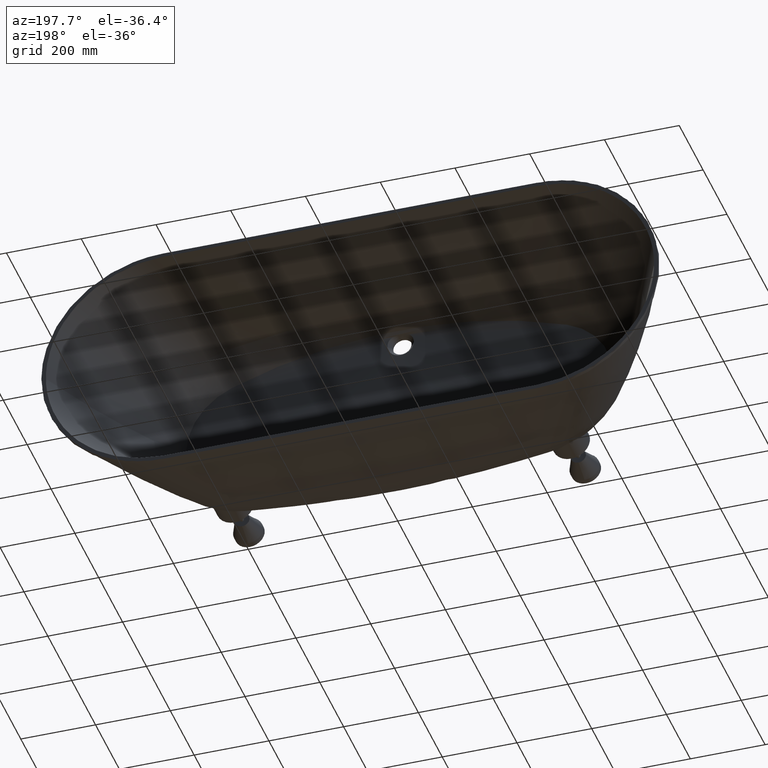
[diagram: clean part render]
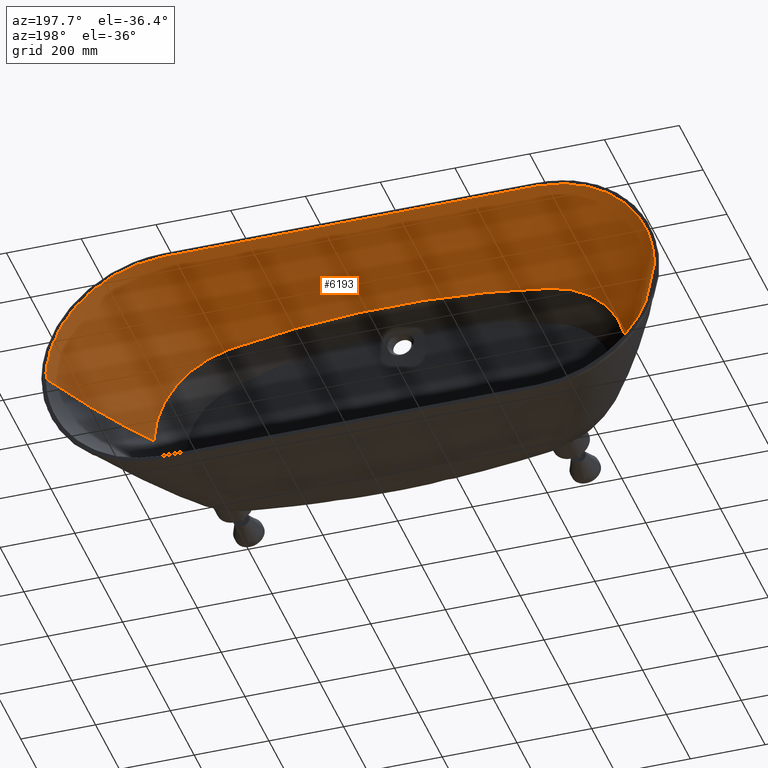
[diagram: same view with one face highlighted and labeled with its STEP entity id]
A machine part, auxiliary view. The second image highlights one B-rep face of the part: STEP entity #6193.
In plain terms, the highlighted face is a freeform B-spline surface patch.
Its self-contained STEP definition (entity closure, byte-faithful):
#2423 = DIRECTION ( 'NONE',  ( 0.0000000000000000000, 0.0000000000000000000, 1.000000000000000000 ) ) ;
#2513 = DIRECTION ( 'NONE',  ( 0.0000000000000000000, 1.000000000000000000, 0.0000000000000000000 ) ) ;
#2578 = CARTESIAN_POINT ( 'NONE',  ( 382.7499999999999400, -339.9999999999999400, 0.0000000000000000000 ) ) ;
#2883 = CARTESIAN_POINT ( 'NONE',  ( -499.9999999886463800, 0.0000000000000000000, 315.0000000000000000 ) ) ;
#2966 = CARTESIAN_POINT ( 'NONE',  ( 815.0000000000000000, 0.0000000000000000000, 1.127570259384924600E-014 ) ) ;
#3788 = CARTESIAN_POINT ( 'NONE',  ( 428.3154761904755800, -339.9999999999999400, 245.8125045223180800 ) ) ;
#4657 = EDGE_CURVE ( 'NONE', #6265, #19374, #61300, .T. ) ;
#5799 = CARTESIAN_POINT ( 'NONE',  ( -632.7485536667462600, -339.9999999999999400, 0.8504503916204713100 ) ) ;
#6193 = ADVANCED_FACE ( 'NONE', ( #42514 ), #30620, .F. ) ;
#6265 = VERTEX_POINT ( 'NONE', #7958 ) ;
#6462 = VERTEX_POINT ( 'NONE', #5799 ) ;
#6741 = CARTESIAN_POINT ( 'NONE',  ( -814.9978374447383700, 0.0000000000000000000, 1.167818525505383000 ) ) ;
#7958 = CARTESIAN_POINT ( 'NONE',  ( -428.3154761904760300, -339.9999999999999400, 245.8125045223181600 ) ) ;
#8043 = EDGE_CURVE ( 'NONE', #19374, #58101, #46197, .T. ) ;
#8044 = CARTESIAN_POINT ( 'NONE',  ( 630.6396377741135700, -343.2378964346709700, 1.180791005771231400E-008 ) ) ;
#8113 = CARTESIAN_POINT ( 'NONE',  ( 631.3430918494087800, -342.1585976231139600, 1.169327015423937900E-008 ) ) ;
#8132 = CARTESIAN_POINT ( 'NONE',  ( 632.0465459247038800, -341.0792988115569500, 1.157863025076644200E-008 ) ) ;
#8137 = AXIS2_PLACEMENT_3D ( 'NONE', #66514, #66338, #66350 ) ;
#8179 = CARTESIAN_POINT ( 'NONE',  ( 632.7499999999990900, -339.9999999999999400, 1.146399034729350700E-008 ) ) ;
#8192 = CARTESIAN_POINT ( 'NONE',  ( 703.0954075295183000, -232.0701188442985200, 0.0000000000000000000 ) ) ;
#8273 = CARTESIAN_POINT ( 'NONE',  ( 764.0619562190189500, -118.3327989297305900, 0.0000000000000000000 ) ) ;
#8357 = CARTESIAN_POINT ( 'NONE',  ( 814.9999999999998900, 0.0000000000000000000, 2.255140518769849200E-014 ) ) ;
#8406 = CARTESIAN_POINT ( 'NONE',  ( 815.8784694402762600, 2.040748719937352600, 2.294032315199775100E-014 ) ) ;
#8419 = CARTESIAN_POINT ( 'NONE',  ( 816.7569388805527500, 4.081497439874705300, 2.332924111629700900E-014 ) ) ;
#8496 = CARTESIAN_POINT ( 'NONE',  ( 817.6354083208292400, 6.122246159812057400, 2.371815908059626700E-014 ) ) ;
#8581 = CARTESIAN_POINT ( 'NONE',  ( 630.6396377741135700, -343.2378964346709700, -15.20747942933785900 ) ) ;
#8631 = CARTESIAN_POINT ( 'NONE',  ( 631.3430918494087800, -342.1585976231139600, -15.22652929045361800 ) ) ;
#8644 = CARTESIAN_POINT ( 'NONE',  ( 632.0465459247038800, -341.0792988115569500, -15.24557915156937900 ) ) ;
#8723 = CARTESIAN_POINT ( 'NONE',  ( 632.7499999999990900, -339.9999999999999400, -15.26462901268513900 ) ) ;
#8757 = EDGE_CURVE ( 'NONE', #15288, #19580, #60178, .T. ) ;
#8807 = CARTESIAN_POINT ( 'NONE',  ( 703.0954075295183000, -232.0701188442985200, -17.16961512426118100 ) ) ;
#8859 = CARTESIAN_POINT ( 'NONE',  ( 764.0619562190189500, -118.3327989297305900, -19.07460122437323900 ) ) ;
#8871 = CARTESIAN_POINT ( 'NONE',  ( 815.0000000000000000, 0.0000000000000000000, -20.97958732448527300 ) ) ;
#8951 = CARTESIAN_POINT ( 'NONE',  ( 815.8784694402763800, 2.040748719937352600, -21.01244041323551000 ) ) ;
#9030 = CARTESIAN_POINT ( 'NONE',  ( 816.7569388805528700, 4.081497439874705300, -21.04529350198574300 ) ) ;
#9085 = CARTESIAN_POINT ( 'NONE',  ( 817.6354083208293600, 6.122246159812057400, -21.07814659073598000 ) ) ;
#9096 = CARTESIAN_POINT ( 'NONE',  ( 627.8524423991261800, -343.2387512402786500, -45.69771026261504000 ) ) ;
#9176 = CARTESIAN_POINT ( 'NONE',  ( 628.5505092838254800, -342.1591674935188500, -45.75498711406243800 ) ) ;
#9255 = CARTESIAN_POINT ( 'NONE',  ( 629.2485761685247800, -341.0795837467591100, -45.81226396550983500 ) ) ;
#9302 = CARTESIAN_POINT ( 'NONE',  ( 629.9466430532240800, -339.9999999999993700, -45.86954081695724000 ) ) ;
#9314 = CARTESIAN_POINT ( 'NONE',  ( 699.7533315231526100, -232.0416253240214800, -51.59722596169717000 ) ) ;
#9393 = CARTESIAN_POINT ( 'NONE',  ( 760.2512966498181900, -118.3044425818916500, -57.25437983429394300 ) ) ;
#9474 = CARTESIAN_POINT ( 'NONE',  ( 810.7957504450571400, 0.0000000000000000000, -62.83972943412166500 ) ) ;
#9526 = CARTESIAN_POINT ( 'NONE',  ( 811.6674320947391800, 2.040259690850930100, -62.93605348923862400 ) ) ;
#9540 = CARTESIAN_POINT ( 'NONE',  ( 812.5391137444213400, 4.080519381701860100, -63.03237754435559000 ) ) ;
#9616 = CARTESIAN_POINT ( 'NONE',  ( 813.4107953941033900, 6.120779072552791100, -63.12870159947254900 ) ) ;
#9701 = CARTESIAN_POINT ( 'NONE',  ( 615.3216480266680700, -343.2422842499915400, -90.11158818543536600 ) ) ;
#9753 = CARTESIAN_POINT ( 'NONE',  ( 615.9970575292834400, -342.1615228333278700, -90.22331196607530000 ) ) ;
#9764 = CARTESIAN_POINT ( 'NONE',  ( 616.6724670318988000, -341.0807614166641300, -90.33503574671523500 ) ) ;
#9918 = CARTESIAN_POINT ( 'NONE',  ( 617.3478765345141700, -340.0000000000004500, -90.44675952735516900 ) ) ;
#9970 = CARTESIAN_POINT ( 'NONE',  ( 684.8888267960483100, -231.9238583336311900, -101.6191375913490900 ) ) ;
#9981 = CARTESIAN_POINT ( 'NONE',  ( 743.4109317740421800, -118.1872425409343600, -112.4294705857455500 ) ) ;
#10056 = CARTESIAN_POINT ( 'NONE',  ( 792.2894824840840300, 0.0000000000000000000, -122.8712240048082700 ) ) ;
#10140 = AXIS2_PLACEMENT_3D ( 'NONE', #57947, #57809, #57729 ) ;
#10141 = CARTESIAN_POINT ( 'NONE',  ( 793.1324342328475700, 2.038238477495686300, -123.0513008314918600 ) ) ;
#10194 = CARTESIAN_POINT ( 'NONE',  ( 793.9753859816112300, 4.076476954991372600, -123.2313776581754600 ) ) ;
#10203 = CARTESIAN_POINT ( 'NONE',  ( 794.8183377303747600, 6.114715432487058100, -123.4114544848590600 ) ) ;
#10276 = CARTESIAN_POINT ( 'NONE',  ( 594.7490592185829400, -343.2477544454772000, -131.6613781192098700 ) ) ;
#10364 = CARTESIAN_POINT ( 'NONE',  ( 595.3894079361243700, -342.1651696303183600, -131.8218954427376600 ) ) ;
#10419 = CARTESIAN_POINT ( 'NONE',  ( 596.0297566536659100, -341.0825848151595200, -131.9824127662654400 ) ) ;
#10430 = CARTESIAN_POINT ( 'NONE',  ( 596.6701053712073400, -340.0000000000006800, -132.1429300897932300 ) ) ;
#10501 = CARTESIAN_POINT ( 'NONE',  ( 660.7049771253609800, -231.7415184841179600, -148.1946624425712600 ) ) ;
#10591 = CARTESIAN_POINT ( 'NONE',  ( 716.1698247946101200, -118.0057805050937700, -163.4329958974642200 ) ) ;
#10644 = CARTESIAN_POINT ( 'NONE',  ( 762.4710279237682500, 0.0000000000000000000, -177.8432495059432800 ) ) ;
#10656 = CARTESIAN_POINT ( 'NONE',  ( 763.2695311441094600, 2.035109011948447400, -178.0917664587362000 ) ) ;
#10731 = CARTESIAN_POINT ( 'NONE',  ( 764.0680343644506800, 4.070218023896894800, -178.3402834115291300 ) ) ;
#10817 = CARTESIAN_POINT ( 'NONE',  ( 764.8665375847919000, 6.105327035845340900, -178.5888003643220500 ) ) ;
#10873 = CARTESIAN_POINT ( 'NONE',  ( 566.7298747278495100, -343.2548482112079600, -168.8681225520631100 ) ) ;
#10885 = CARTESIAN_POINT ( 'NONE',  ( 567.3253369164415300, -342.1698988074712700, -169.0696181952787600 ) ) ;
#10964 = CARTESIAN_POINT ( 'NONE',  ( 567.9207991050334400, -341.0849494037346400, -169.2711138384944100 ) ) ;
#11050 = CARTESIAN_POINT ( 'NONE',  ( 568.5162612936254600, -339.9999999999979500, -169.4726094817100700 ) ) ;
#11103 = CARTESIAN_POINT ( 'NONE',  ( 628.0624801528175600, -231.5050596263339700, -189.6221738032741900 ) ) ;
#11115 = CARTESIAN_POINT ( 'NONE',  ( 679.6207075889775500, -117.7704599986856100, -208.3730222434341500 ) ) ;
#11194 = CARTESIAN_POINT ( 'NONE',  ( 722.6376388438470700, 0.0000000000000000000, -225.6999095224805700 ) ) ;
#11282 = CARTESIAN_POINT ( 'NONE',  ( 723.3795020312979900, 2.031050711742833100, -225.9987262778943200 ) ) ;
#11338 = CARTESIAN_POINT ( 'NONE',  ( 724.1213652187489100, 4.062101423485666300, -226.2975430333081000 ) ) ;
#11339 = CARTESIAN_POINT ( 'NONE',  ( 632.7499999999990900, -339.9999999999999400, 1.146400779507114000E-008 ) ) ;
#11352 = CARTESIAN_POINT ( 'NONE',  ( 724.8632284061998200, 6.093152135228499400, -226.5963597887218600 ) ) ;
#11430 = CARTESIAN_POINT ( 'NONE',  ( 532.1392420713547200, -343.2632519316674700, -200.3715644900239300 ) ) ;
#11515 = CARTESIAN_POINT ( 'NONE',  ( 532.6828233481712700, -342.1755012877788400, -200.6047124063716800 ) ) ;
#11544 = ORIENTED_EDGE ( 'NONE', *, *, #46047, .F. ) ;
#11588 = CARTESIAN_POINT ( 'NONE',  ( 533.2264046249878200, -341.0877506438902200, -200.8378603227194200 ) ) ;
#11665 = CARTESIAN_POINT ( 'NONE',  ( 533.7699859018043800, -340.0000000000016500, -201.0710082390671400 ) ) ;
#11753 = CARTESIAN_POINT ( 'NONE',  ( 588.1281135834599400, -231.2249356111392200, -224.3857998738420500 ) ) ;
#11819 = CARTESIAN_POINT ( 'NONE',  ( 635.1877622915172900, -117.4916845460295700, -245.6084723640644000 ) ) ;
#11885 = CARTESIAN_POINT ( 'NONE',  ( 674.4433877745763100, 0.0000000000000000000, -264.7012652597497300 ) ) ;
#11895 = CARTESIAN_POINT ( 'NONE',  ( 675.1203840780481200, 2.026242994412530000, -265.0305365439102200 ) ) ;
#11987 = CARTESIAN_POINT ( 'NONE',  ( 675.7973803815198200, 4.052485988825059900, -265.3598078280707000 ) ) ;
#12022 = CARTESIAN_POINT ( 'NONE',  ( 815.0000000000000000, 0.0000000000000000000, 1.127570259384924600E-014 ) ) ;
#12055 = CARTESIAN_POINT ( 'NONE',  ( 676.4743766849915100, 6.078728983237589900, -265.6890791122312400 ) ) ;
#12126 = CARTESIAN_POINT ( 'NONE',  ( 492.1068910974331100, -343.2726519913174500, -224.9832046386746600 ) ) ;
#12215 = CARTESIAN_POINT ( 'NONE',  ( 492.5945127224962300, -342.1817679942112100, -225.2378229741719600 ) ) ;
#12283 = CARTESIAN_POINT ( 'NONE',  ( 493.0821343475593000, -341.0908839971050400, -225.4924413096692900 ) ) ;
#12358 = CARTESIAN_POINT ( 'NONE',  ( 493.5697559726224300, -339.9999999999988100, -225.7470596451665900 ) ) ;
#12452 = CARTESIAN_POINT ( 'NONE',  ( 542.3319184789353400, -230.9116002893787000, -251.2088931948972600 ) ) ;
#12521 = CARTESIAN_POINT ( 'NONE',  ( 584.5668625729688300, -117.1798576714378700, -273.8029949328997600 ) ) ;
#12541 = CARTESIAN_POINT ( 'NONE',  ( 619.8224669623413100, 0.0000000000000000000, -293.4776054491138700 ) ) ;
#12595 = CARTESIAN_POINT ( 'NONE',  ( 620.4304795351780500, 2.020865277491096000, -293.8169106678645300 ) ) ;
#12682 = CARTESIAN_POINT ( 'NONE',  ( 621.0384921080147900, 4.041730554982192000, -294.1562158866151400 ) ) ;
#12745 = CARTESIAN_POINT ( 'NONE',  ( 621.6465046808514200, 6.062595832473286700, -294.4955211053658100 ) ) ;
#12764 = CARTESIAN_POINT ( 'NONE',  ( 447.9848239064814900, -343.2827347746430200, -241.7384477549949500 ) ) ;
#12820 = CARTESIAN_POINT ( 'NONE',  ( 448.4152531699432400, -342.1884898497621100, -242.0041266737129600 ) ) ;
#12908 = CARTESIAN_POINT ( 'NONE',  ( 448.8456824334049900, -341.0942449248812500, -242.2698055924309700 ) ) ;
#12973 = CARTESIAN_POINT ( 'NONE',  ( 449.2761116968667900, -340.0000000000004000, -242.5354845111489800 ) ) ;
#12991 = CARTESIAN_POINT ( 'NONE',  ( 492.3190380430434100, -230.5755075119134900, -269.1033763829491400 ) ) ;
#13053 = CARTESIAN_POINT ( 'NONE',  ( 529.6620229744679600, -116.8453828992306700, -291.9715912474202400 ) ) ;
#13144 = CARTESIAN_POINT ( 'NONE',  ( 560.9102482521661800, 0.0000000000000000000, -311.0733539939196200 ) ) ;
#13209 = CARTESIAN_POINT ( 'NONE',  ( 561.4491501991542500, 2.015096978512225700, -311.4027799707074600 ) ) ;
#13227 = CARTESIAN_POINT ( 'NONE',  ( 561.9880521461421900, 4.030193957024451400, -311.7322059474953400 ) ) ;
#13285 = CARTESIAN_POINT ( 'NONE',  ( 562.5269540931302600, 6.045290935536678000, -312.0616319242832300 ) ) ;
#13371 = CARTESIAN_POINT ( 'NONE',  ( 416.8635670283750900, -343.2897027022889300, -247.2019097017374900 ) ) ;
#13413 = AXIS2_PLACEMENT_3D ( 'NONE', #46884, #15384, #52191 ) ;
#13436 = CARTESIAN_POINT ( 'NONE',  ( 417.2568108912569200, -342.1931351348592900, -247.4682432827791000 ) ) ;
#13457 = CARTESIAN_POINT ( 'NONE',  ( 417.6500547541388100, -341.0965675674296400, -247.7345768638207300 ) ) ;
#13505 = CARTESIAN_POINT ( 'NONE',  ( 418.0432986170206400, -339.9999999999999400, -248.0009104448623400 ) ) ;
#13517 = CARTESIAN_POINT ( 'NONE',  ( 457.3676849052068900, -230.3432432570329800, -274.6342685490220700 ) ) ;
#13593 = CARTESIAN_POINT ( 'NONE',  ( 491.5638376173482100, -116.6142368022250900, -296.9930157469034400 ) ) ;
#13610 = CARTESIAN_POINT ( 'NONE',  ( -382.7499999999999400, -339.9999999999999400, 0.0000000000000000000 ) ) ;
#13679 = CARTESIAN_POINT ( 'NONE',  ( 520.2765390411527700, 0.0000000000000000000, -314.9999999999999400 ) ) ;
#13731 = CARTESIAN_POINT ( 'NONE',  ( 520.7717137450940800, 2.011110669510418200, -315.3105456001784400 ) ) ;
#13743 = CARTESIAN_POINT ( 'NONE',  ( 521.2668884490354900, 4.022221339020836300, -315.6210912003570000 ) ) ;
#13822 = CARTESIAN_POINT ( 'NONE',  ( 521.7620631529767900, 6.033332008531254500, -315.9316368005355000 ) ) ;
#13903 = CARTESIAN_POINT ( 'NONE',  ( 368.3395658688336900, -343.3004913928787700, -251.0281738213399500 ) ) ;
#13955 = CARTESIAN_POINT ( 'NONE',  ( 368.6773099577103500, -342.2003275952524700, -251.2907462629638400 ) ) ;
#13968 = CARTESIAN_POINT ( 'NONE',  ( 369.0150540465870100, -341.1001637976261800, -251.5533187045877000 ) ) ;
#14049 = CARTESIAN_POINT ( 'NONE',  ( 369.3527981354636700, -339.9999999999998900, -251.8158911462115600 ) ) ;
#14129 = CARTESIAN_POINT ( 'NONE',  ( 403.1272070231266900, -229.9836202373711000, -278.0731353085955700 ) ) ;
#14179 = CARTESIAN_POINT ( 'NONE',  ( 432.6585779470707400, -116.2563450662323000, -299.1655779283817700 ) ) ;
#14192 = CARTESIAN_POINT ( 'NONE',  ( 457.6530081011364400, 0.0000000000000000000, -314.9999999999999400 ) ) ;
#14269 = CARTESIAN_POINT ( 'NONE',  ( 458.0840580873094700, 2.004938525280675100, -315.2730779366825100 ) ) ;
#14351 = CARTESIAN_POINT ( 'NONE',  ( 458.5151080734824500, 4.009877050561350100, -315.5461558733650800 ) ) ;
#14403 = CARTESIAN_POINT ( 'NONE',  ( 458.9461580596554300, 6.014815575842026100, -315.8192338100476500 ) ) ;
#14414 = CARTESIAN_POINT ( 'NONE',  ( 302.1370308077233100, -343.3151630299041100, -255.6027186251753000 ) ) ;
#14416 = CARTESIAN_POINT ( 'NONE',  ( -500.0000000000000000, 0.0000000000000000000, 314.9999999999999400 ) ) ;
#14497 = CARTESIAN_POINT ( 'NONE',  ( 302.4038617611722700, -342.2101086866027200, -255.8622515931434100 ) ) ;
#14581 = CARTESIAN_POINT ( 'NONE',  ( 302.6706927146212800, -341.1050543433013300, -256.1217845611115000 ) ) ;
#14632 = CARTESIAN_POINT ( 'NONE',  ( 302.9375236680702400, -339.9999999999999400, -256.3813175290796400 ) ) ;
#14645 = CARTESIAN_POINT ( 'NONE',  ( 329.6206190129660200, -229.4945656698601800, -282.3346143258879100 ) ) ;
#14721 = CARTESIAN_POINT ( 'NONE',  ( 353.2644618407912800, -115.7696448868992900, -301.9125313555539900 ) ) ;
#14797 = CARTESIAN_POINT ( 'NONE',  ( 373.6585320357625600, 0.0000000000000000000, -314.9999999999997200 ) ) ;
#14849 = CARTESIAN_POINT ( 'NONE',  ( 374.0102449422527700, 1.996544971025638200, -315.2257044126810700 ) ) ;
#14860 = CARTESIAN_POINT ( 'NONE',  ( 374.3619578487429700, 3.993089942051276400, -315.4514088253623600 ) ) ;
#14942 = CARTESIAN_POINT ( 'NONE',  ( 374.7136707552331800, 5.989634913076915100, -315.6771132380437200 ) ) ;
#15023 = CARTESIAN_POINT ( 'NONE',  ( 201.6757612104658500, -343.3345557027414000, -260.5553758251272100 ) ) ;
#15075 = CARTESIAN_POINT ( 'NONE',  ( 201.8463471399618100, -342.2230371351608900, -260.8145014549888300 ) ) ;
#15085 = CARTESIAN_POINT ( 'NONE',  ( 202.0169330694577600, -341.1115185675803900, -261.0736270848505000 ) ) ;
#15163 = CARTESIAN_POINT ( 'NONE',  ( 202.1875189989537200, -339.9999999999998900, -261.3327527147121100 ) ) ;
#15250 = CARTESIAN_POINT ( 'NONE',  ( 219.2461119485500100, -228.8481432419503100, -287.2453157008732800 ) ) ;
#15288 = VERTEX_POINT ( 'NONE', #58071 ) ;
#15304 = CARTESIAN_POINT ( 'NONE',  ( 234.8565916174706300, -115.1263344416256600, -305.1823811271733600 ) ) ;
#15315 = CARTESIAN_POINT ( 'NONE',  ( 248.9186514422417000, 0.0000000000000000000, -315.0000000000004000 ) ) ;
#15384 = DIRECTION ( 'NONE',  ( 0.0000000000000000000, 1.000000000000000000, 0.0000000000000000000 ) ) ;
#15391 = CARTESIAN_POINT ( 'NONE',  ( 249.1611635001549700, 1.985450540913374000, -315.1693131010912300 ) ) ;
#15481 = CARTESIAN_POINT ( 'NONE',  ( 249.4036755580682200, 3.970901081826748100, -315.3386262021821300 ) ) ;
#15534 = CARTESIAN_POINT ( 'NONE',  ( 249.6461876159814900, 5.956351622740122300, -315.5079393032729600 ) ) ;
#15544 = CARTESIAN_POINT ( 'NONE',  ( 100.6964241789768000, -343.3484767670811900, -263.5321986084285900 ) ) ;
#15620 = CARTESIAN_POINT ( 'NONE',  ( 100.7786325924251700, -342.2323178447207400, -263.7929409088160400 ) ) ;
#15706 = CARTESIAN_POINT ( 'NONE',  ( 100.8608410058735400, -341.1161589223602800, -264.0536832092035400 ) ) ;
#15765 = CARTESIAN_POINT ( 'NONE',  ( 100.9430494193219200, -339.9999999999998900, -264.3144255095909900 ) ) ;
#15776 = CARTESIAN_POINT ( 'NONE',  ( 109.1638907641596500, -228.3841077639568200, -290.3886555483382500 ) ) ;
#15851 = CARTESIAN_POINT ( 'NONE',  ( 117.0788209305942600, -114.6645329058466300, -307.3387406524866500 ) ) ;
#15939 = CARTESIAN_POINT ( 'NONE',  ( 124.6666503477239400, 0.0000000000000000000, -314.9999999999994900 ) ) ;
#15994 = CARTESIAN_POINT ( 'NONE',  ( 124.7975088528059200, 1.977486384723966300, -315.1321248660379400 ) ) ;
#16005 = CARTESIAN_POINT ( 'NONE',  ( 124.9283673578878900, 3.954972769447932600, -315.2642497320763400 ) ) ;
#16075 = CARTESIAN_POINT ( 'NONE',  ( 125.0592258629698800, 5.932459154171898100, -315.3963745981147300 ) ) ;
#16165 = CARTESIAN_POINT ( 'NONE',  ( 33.47626300487673500, -343.3522051871116800, -264.1866634332819200 ) ) ;
#16218 = CARTESIAN_POINT ( 'NONE',  ( 33.50329404006415500, -342.2348034580744500, -264.4483100236336700 ) ) ;
#16231 = CARTESIAN_POINT ( 'NONE',  ( 33.53032507525157500, -341.1174017290372300, -264.7099566139854700 ) ) ;
#16305 = CARTESIAN_POINT ( 'NONE',  ( 33.55735611043899500, -339.9999999999999400, -264.9716032043372100 ) ) ;
#16393 = CARTESIAN_POINT ( 'NONE',  ( 36.26045962918109200, -228.2598270962784900, -291.1362622395150800 ) ) ;
#16445 = CARTESIAN_POINT ( 'NONE',  ( 38.96356314792385700, -114.5408505455027800, -307.8691389515115600 ) ) ;
#16457 = CARTESIAN_POINT ( 'NONE',  ( 41.66666666666662900, 0.0000000000000000000, -314.9999999999999400 ) ) ;
#16536 = CARTESIAN_POINT ( 'NONE',  ( 41.71328396208789300, 1.975353378314640900, -315.1229777009279500 ) ) ;
#16624 = CARTESIAN_POINT ( 'NONE',  ( 41.75990125750915600, 3.950706756629281700, -315.2459554018559500 ) ) ;
#16680 = CARTESIAN_POINT ( 'NONE',  ( 41.80651855293042000, 5.926060134943922400, -315.3689331027839600 ) ) ;
#16694 = CARTESIAN_POINT ( 'NONE',  ( -33.47626300487536400, -343.3522051871116800, -264.1866634332819200 ) ) ;
#16773 = CARTESIAN_POINT ( 'NONE',  ( -33.50329404006279800, -342.2348034580744500, -264.4483100236336700 ) ) ;
#16857 = CARTESIAN_POINT ( 'NONE',  ( -33.53032507525023200, -341.1174017290372300, -264.7099566139854700 ) ) ;
#16930 = CARTESIAN_POINT ( 'NONE',  ( -33.55735611043765900, -339.9999999999999400, -264.9716032043372100 ) ) ;
#16993 = CARTESIAN_POINT ( 'NONE',  ( -36.26045962918109200, -228.2598270962784900, -291.1362622395150800 ) ) ;
#17005 = CARTESIAN_POINT ( 'NONE',  ( -38.96356314792385700, -114.5408505455027800, -307.8691389515115600 ) ) ;
#17094 = CARTESIAN_POINT ( 'NONE',  ( -41.66666666666662900, 0.0000000000000000000, -314.9999999999999400 ) ) ;
#17109 = ORIENTED_EDGE ( 'NONE', *, *, #4657, .F. ) ;
#17163 = CARTESIAN_POINT ( 'NONE',  ( -41.71328396208789300, 1.975353378314640900, -315.1229777009279500 ) ) ;
#17183 = AXIS2_PLACEMENT_3D ( 'NONE', #2578, #2513, #2423 ) ;
#17232 = CARTESIAN_POINT ( 'NONE',  ( -41.75990125750915600, 3.950706756629281700, -315.2459554018559500 ) ) ;
#17242 = CARTESIAN_POINT ( 'NONE',  ( -41.80651855293042000, 5.926060134943922400, -315.3689331027839600 ) ) ;
#17331 = CARTESIAN_POINT ( 'NONE',  ( -100.6964241789752500, -343.3484767670802300, -263.5321986084284700 ) ) ;
#17367 = CARTESIAN_POINT ( 'NONE',  ( 703.0954075295183000, -232.0701188442985200, 1.193211191029293400E-025 ) ) ;
#17400 = CARTESIAN_POINT ( 'NONE',  ( -100.7786325924236300, -342.2323178447198300, -263.7929409088159200 ) ) ;
#17479 = CARTESIAN_POINT ( 'NONE',  ( -100.8608410058720200, -341.1161589223593800, -264.0536832092034300 ) ) ;
#17491 = ORIENTED_EDGE ( 'NONE', *, *, #66746, .T. ) ;
#17570 = CARTESIAN_POINT ( 'NONE',  ( -100.9430494193204000, -339.9999999999989200, -264.3144255095908800 ) ) ;
#17633 = CARTESIAN_POINT ( 'NONE',  ( -109.1638907641595600, -228.3841077639561700, -290.3886555483383100 ) ) ;
#17701 = CARTESIAN_POINT ( 'NONE',  ( -117.0788209305942000, -114.6645329058463300, -307.3387406524868200 ) ) ;
#17754 = B_SPLINE_CURVE_WITH_KNOTS ( 'NONE', 3,
 ( #30525, #25265, #67248, #35811 ),
 .UNSPECIFIED., .F., .F.,
 ( 4, 4 ),
 ( 3.816391647148975600E-017, 0.9999999999999978900 ),
 .UNSPECIFIED. ) ;
#17794 = CARTESIAN_POINT ( 'NONE',  ( -124.6666503477239700, 0.0000000000000000000, -314.9999999999997700 ) ) ;
#17822 = ORIENTED_EDGE ( 'NONE', *, *, #66555, .F. ) ;
#17861 = CARTESIAN_POINT ( 'NONE',  ( -124.7975088528059500, 1.977486384723961200, -315.1321248660382800 ) ) ;
#17881 = CARTESIAN_POINT ( 'NONE',  ( -124.9283673578879200, 3.954972769447922400, -315.2642497320767300 ) ) ;
#17939 = CARTESIAN_POINT ( 'NONE',  ( -125.0592258629699100, 5.932459154171883000, -315.3963745981151900 ) ) ;
#18030 = CARTESIAN_POINT ( 'NONE',  ( -201.6757612104641700, -343.3345557027429300, -260.5553758251277800 ) ) ;
#18092 = CARTESIAN_POINT ( 'NONE',  ( -201.8463471399601600, -342.2230371351623700, -260.8145014549894000 ) ) ;
#18112 = CARTESIAN_POINT ( 'NONE',  ( -202.0169330694561400, -341.1115185675818700, -261.0736270848510700 ) ) ;
#18171 = CARTESIAN_POINT ( 'NONE',  ( -202.1875189989521300, -340.0000000000013600, -261.3327527147126800 ) ) ;
#18253 = CARTESIAN_POINT ( 'NONE',  ( -219.2461119485497500, -228.8481432419513300, -287.2453157008735000 ) ) ;
#18320 = CARTESIAN_POINT ( 'NONE',  ( -234.8565916174701200, -115.1263344416261700, -305.1823811271732400 ) ) ;
#18336 = CARTESIAN_POINT ( 'NONE',  ( -248.9186514422412400, 0.0000000000000000000, -315.0000000000000000 ) ) ;
#18391 = CARTESIAN_POINT ( 'NONE',  ( -249.1611635001544900, 1.985450540913383100, -315.1693131010908900 ) ) ;
#18476 = CARTESIAN_POINT ( 'NONE',  ( -249.4036755580677600, 3.970901081826766300, -315.3386262021817300 ) ) ;
#18543 = CARTESIAN_POINT ( 'NONE',  ( -249.6461876159810100, 5.956351622740149800, -315.5079393032725600 ) ) ;
#18560 = CARTESIAN_POINT ( 'NONE',  ( -302.1370308077221100, -343.3151630299028600, -255.6027186251758100 ) ) ;
#18621 = CARTESIAN_POINT ( 'NONE',  ( -302.4038617611711300, -342.2101086866014700, -255.8622515931439000 ) ) ;
#18704 = CARTESIAN_POINT ( 'NONE',  ( -302.6706927146200900, -341.1050543433000800, -256.1217845611120100 ) ) ;
#18769 = CARTESIAN_POINT ( 'NONE',  ( -302.9375236680691000, -339.9999999999986900, -256.3813175290800900 ) ) ;
#18791 = CARTESIAN_POINT ( 'NONE',  ( -329.6206190129661900, -229.4945656698593300, -282.3346143258883100 ) ) ;
#18838 = CARTESIAN_POINT ( 'NONE',  ( -353.2644618407909400, -115.7696448868988700, -301.9125313555542800 ) ) ;
#18849 = CARTESIAN_POINT ( 'NONE',  ( -373.6585320357626200, 0.0000000000000000000, -314.9999999999998300 ) ) ;
#18928 = CARTESIAN_POINT ( 'NONE',  ( -374.0102449422528300, 1.996544971025631300, -315.2257044126811800 ) ) ;
#18945 = DIRECTION ( 'NONE',  ( 0.0000000000000000000, 0.0000000000000000000, 1.000000000000000000 ) ) ;
#19015 = CARTESIAN_POINT ( 'NONE',  ( -374.3619578487430300, 3.993089942051262700, -315.4514088253624800 ) ) ;
#19063 = CARTESIAN_POINT ( 'NONE',  ( -374.7136707552332400, 5.989634913076894700, -315.6771132380438300 ) ) ;
#19076 = CARTESIAN_POINT ( 'NONE',  ( -368.3395658688324900, -343.3004913928788300, -251.0281738213410300 ) ) ;
#19155 = CARTESIAN_POINT ( 'NONE',  ( -368.6773099577091600, -342.2003275952525300, -251.2907462629648300 ) ) ;
#19233 = CARTESIAN_POINT ( 'NONE',  ( -369.0150540465858200, -341.1001637976262400, -251.5533187045886300 ) ) ;
#19287 = CARTESIAN_POINT ( 'NONE',  ( -369.3527981354624800, -339.9999999999999400, -251.8158911462124400 ) ) ;
#19301 = CARTESIAN_POINT ( 'NONE',  ( -403.1272070231268000, -229.9836202373712100, -278.0731353085961400 ) ) ;
#19374 = VERTEX_POINT ( 'NONE', #3788 ) ;
#19378 = VERTEX_POINT ( 'NONE', #6741 ) ;
#19386 = CARTESIAN_POINT ( 'NONE',  ( -432.6585779470703400, -116.2563450662323700, -299.1655779283820500 ) ) ;
#19469 = CARTESIAN_POINT ( 'NONE',  ( -457.6530081011364400, 0.0000000000000000000, -314.9999999999999400 ) ) ;
#19523 = CARTESIAN_POINT ( 'NONE',  ( -458.0840580873094700, 2.004938525280676400, -315.2730779366825100 ) ) ;
#19535 = CARTESIAN_POINT ( 'NONE',  ( -458.5151080734824500, 4.009877050561352800, -315.5461558733650800 ) ) ;
#19580 = VERTEX_POINT ( 'NONE', #2966 ) ;
#19615 = CARTESIAN_POINT ( 'NONE',  ( -458.9461580596554300, 6.014815575842029600, -315.8192338100476500 ) ) ;
#19695 = CARTESIAN_POINT ( 'NONE',  ( -416.8635670283748600, -343.2897027022889300, -247.2019097017376300 ) ) ;
#19748 = CARTESIAN_POINT ( 'NONE',  ( -417.2568108912566900, -342.1931351348592900, -247.4682432827792100 ) ) ;
#19761 = CARTESIAN_POINT ( 'NONE',  ( -417.6500547541385800, -341.0965675674296400, -247.7345768638207900 ) ) ;
#19844 = CARTESIAN_POINT ( 'NONE',  ( -418.0432986170204700, -339.9999999999999400, -248.0009104448624000 ) ) ;
#19926 = CARTESIAN_POINT ( 'NONE',  ( -457.3676849052076800, -230.3432432570330700, -274.6342685490220700 ) ) ;
#19953 = VERTEX_POINT ( 'NONE', #2883 ) ;
#19977 = CARTESIAN_POINT ( 'NONE',  ( -491.5638376173479900, -116.6142368022251500, -296.9930157469033800 ) ) ;
#19988 = CARTESIAN_POINT ( 'NONE',  ( -520.2765390411526600, 0.0000000000000000000, -314.9999999999999400 ) ) ;
#20063 = CARTESIAN_POINT ( 'NONE',  ( -520.7717137450939600, 2.011110669510419500, -315.3105456001784400 ) ) ;
#20143 = CARTESIAN_POINT ( 'NONE',  ( -521.2668884490353800, 4.022221339020839000, -315.6210912003570000 ) ) ;
#20188 = EDGE_CURVE ( 'NONE', #58101, #31357, #67555, .T. ) ;
#20191 = CARTESIAN_POINT ( 'NONE',  ( -521.7620631529766800, 6.033332008531258100, -315.9316368005355000 ) ) ;
#20203 = CARTESIAN_POINT ( 'NONE',  ( -447.9848239064827500, -343.2827347746441500, -241.7384477549959500 ) ) ;
#20279 = CARTESIAN_POINT ( 'NONE',  ( -448.4152531699444900, -342.1884898497633000, -242.0041266737139300 ) ) ;
#20362 = CARTESIAN_POINT ( 'NONE',  ( -448.8456824334063000, -341.0942449248824500, -242.2698055924319100 ) ) ;
#20415 = CARTESIAN_POINT ( 'NONE',  ( -449.2761116968680400, -340.0000000000015900, -242.5354845111498900 ) ) ;
#20428 = CARTESIAN_POINT ( 'NONE',  ( -492.3190380430444900, -230.5755075119143100, -269.1033763829492500 ) ) ;
#20505 = CARTESIAN_POINT ( 'NONE',  ( -529.6620229744672800, -116.8453828992311300, -291.9715912474196100 ) ) ;
#20592 = CARTESIAN_POINT ( 'NONE',  ( -560.9102482521647100, 0.0000000000000000000, -311.0733539939182600 ) ) ;
#20648 = CARTESIAN_POINT ( 'NONE',  ( -561.4491501991527700, 2.015096978512233700, -311.4027799707060900 ) ) ;
#20658 = CARTESIAN_POINT ( 'NONE',  ( -561.9880521461408300, 4.030193957024467400, -311.7322059474939200 ) ) ;
#20736 = CARTESIAN_POINT ( 'NONE',  ( -562.5269540931287800, 6.045290935536700200, -312.0616319242817000 ) ) ;
#20820 = CARTESIAN_POINT ( 'NONE',  ( -492.1068910974314000, -343.2726519913166500, -224.9832046386745800 ) ) ;
#20871 = CARTESIAN_POINT ( 'NONE',  ( -492.5945127224945300, -342.1817679942104200, -225.2378229741718800 ) ) ;
#20882 = CARTESIAN_POINT ( 'NONE',  ( -493.0821343475577100, -341.0908839971041900, -225.4924413096692000 ) ) ;
#20956 = CARTESIAN_POINT ( 'NONE',  ( -493.5697559726209000, -339.9999999999979500, -225.7470596451665000 ) ) ;
#21044 = CARTESIAN_POINT ( 'NONE',  ( -542.3319184789357900, -230.9116002893782100, -251.2088931948976000 ) ) ;
#21098 = CARTESIAN_POINT ( 'NONE',  ( -584.5668625729694000, -117.1798576714376900, -273.8029949329005600 ) ) ;
#21109 = CARTESIAN_POINT ( 'NONE',  ( -619.8224669623431300, 0.0000000000000000000, -293.4776054491151200 ) ) ;
#21181 = CARTESIAN_POINT ( 'NONE',  ( -620.4304795351798700, 2.020865277491092500, -293.8169106678657300 ) ) ;
#21273 = CARTESIAN_POINT ( 'NONE',  ( -621.0384921080165000, 4.041730554982184900, -294.1562158866163900 ) ) ;
#21327 = CARTESIAN_POINT ( 'NONE',  ( -621.6465046808532400, 6.062595832473276900, -294.4955211053670000 ) ) ;
#21338 = CARTESIAN_POINT ( 'NONE',  ( -532.1392420713543700, -343.2632519316676400, -200.3715644900243800 ) ) ;
#21409 = CARTESIAN_POINT ( 'NONE',  ( -532.6828233481708100, -342.1755012877790100, -200.6047124063721300 ) ) ;
#21497 = CARTESIAN_POINT ( 'NONE',  ( -533.2264046249873700, -341.0877506438903900, -200.8378603227198500 ) ) ;
#21551 = CARTESIAN_POINT ( 'NONE',  ( -533.7699859018039200, -340.0000000000018200, -201.0710082390676000 ) ) ;
#21565 = CARTESIAN_POINT ( 'NONE',  ( -588.1281135834605000, -231.2249356111393900, -224.3857998738421000 ) ) ;
#21641 = CARTESIAN_POINT ( 'NONE',  ( -635.1877622915171700, -117.4916845460296900, -245.6084723640641700 ) ) ;
#21732 = CARTESIAN_POINT ( 'NONE',  ( -674.4433877745769900, 0.0000000000000000000, -264.7012652597492200 ) ) ;
#21789 = CARTESIAN_POINT ( 'NONE',  ( -675.1203840780488000, 2.026242994412531800, -265.0305365439097600 ) ) ;
#21803 = CARTESIAN_POINT ( 'NONE',  ( -675.7973803815205000, 4.052485988825063500, -265.3598078280702500 ) ) ;
#21872 = CARTESIAN_POINT ( 'NONE',  ( -676.4743766849921900, 6.078728983237595300, -265.6890791122307300 ) ) ;
#21962 = CARTESIAN_POINT ( 'NONE',  ( -566.7298747278511000, -343.2548482112078400, -168.8681225520632800 ) ) ;
#22028 = CARTESIAN_POINT ( 'NONE',  ( -567.3253369164430100, -342.1698988074711600, -169.0696181952789300 ) ) ;
#22106 = CARTESIAN_POINT ( 'NONE',  ( -567.9207991050350300, -341.0849494037345300, -169.2711138384945900 ) ) ;
#22194 = CARTESIAN_POINT ( 'NONE',  ( -568.5162612936269400, -339.9999999999978400, -169.4726094817102400 ) ) ;
#22266 = CARTESIAN_POINT ( 'NONE',  ( -628.0624801528190300, -231.5050596263340000, -189.6221738032742800 ) ) ;
#22344 = CARTESIAN_POINT ( 'NONE',  ( -679.6207075889776700, -117.7704599986856700, -208.3730222434342400 ) ) ;
#22434 = CARTESIAN_POINT ( 'NONE',  ( -722.6376388438469600, 0.0000000000000000000, -225.6999095224806500 ) ) ;
#22499 = CARTESIAN_POINT ( 'NONE',  ( -723.3795020312978700, 2.031050711742834000, -225.9987262778944100 ) ) ;
#22572 = CARTESIAN_POINT ( 'NONE',  ( -724.1213652187487900, 4.062101423485668100, -226.2975430333081900 ) ) ;
#22657 = CARTESIAN_POINT ( 'NONE',  ( -724.8632284061998200, 6.093152135228501200, -226.5963597887219400 ) ) ;
#22724 = CARTESIAN_POINT ( 'NONE',  ( -594.7490592185803300, -343.2477544454777100, -131.6613781192100700 ) ) ;
#22795 = CARTESIAN_POINT ( 'NONE',  ( -595.3894079361219800, -342.1651696303188700, -131.8218954427378500 ) ) ;
#22887 = CARTESIAN_POINT ( 'NONE',  ( -596.0297566536635300, -341.0825848151600900, -131.9824127662656700 ) ) ;
#22957 = CARTESIAN_POINT ( 'NONE',  ( -596.6701053712051800, -340.0000000000012500, -132.1429300897934500 ) ) ;
#22975 = CARTESIAN_POINT ( 'NONE',  ( -660.7049771253600700, -231.7415184841184400, -148.1946624425713100 ) ) ;
#23026 = CARTESIAN_POINT ( 'NONE',  ( -716.1698247946088700, -118.0057805050940800, -163.4329958974640800 ) ) ;
#23115 = CARTESIAN_POINT ( 'NONE',  ( -762.4710279237680200, 0.0000000000000000000, -177.8432495059430500 ) ) ;
#23178 = CARTESIAN_POINT ( 'NONE',  ( -763.2695311441093500, 2.035109011948452700, -178.0917664587359800 ) ) ;
#23198 = CARTESIAN_POINT ( 'NONE',  ( -764.0680343644506800, 4.070218023896905500, -178.3402834115289000 ) ) ;
#23256 = CARTESIAN_POINT ( 'NONE',  ( -764.8665375847920100, 6.105327035845358600, -178.5888003643218600 ) ) ;
#23344 = CARTESIAN_POINT ( 'NONE',  ( -615.3216480266700000, -343.2422842499899500, -90.11158818543557900 ) ) ;
#23408 = CARTESIAN_POINT ( 'NONE',  ( -615.9970575292853700, -342.1615228333262200, -90.22331196607551400 ) ) ;
#23426 = CARTESIAN_POINT ( 'NONE',  ( -616.6724670319007400, -341.0807614166625400, -90.33503574671544800 ) ) ;
#23485 = CARTESIAN_POINT ( 'NONE',  ( -617.3478765345161000, -339.9999999999988600, -90.44675952735538300 ) ) ;
#23570 = CARTESIAN_POINT ( 'NONE',  ( -684.8888267960491000, -231.9238583336302200, -101.6191375913492600 ) ) ;
#23633 = CARTESIAN_POINT ( 'NONE',  ( -743.4109317740411600, -118.1872425409339500, -112.4294705857457800 ) ) ;
#23650 = CARTESIAN_POINT ( 'NONE',  ( -792.2894824840819900, 0.0000000000000000000, -122.8712240048085700 ) ) ;
#23707 = CARTESIAN_POINT ( 'NONE',  ( -793.1324342328456400, 2.038238477495679200, -123.0513008314921700 ) ) ;
#23796 = CARTESIAN_POINT ( 'NONE',  ( -793.9753859816091800, 4.076476954991358400, -123.2313776581757700 ) ) ;
#23856 = CARTESIAN_POINT ( 'NONE',  ( -794.8183377303728300, 6.114715432487037600, -123.4114544848593600 ) ) ;
#23875 = CARTESIAN_POINT ( 'NONE',  ( -627.8524423991254900, -343.2387512402798400, -45.69771026261569300 ) ) ;
#23933 = CARTESIAN_POINT ( 'NONE',  ( -628.5505092838247900, -342.1591674935201000, -45.75498711406309100 ) ) ;
#24013 = CARTESIAN_POINT ( 'NONE',  ( -629.2485761685241000, -341.0795837467603600, -45.81226396551048200 ) ) ;
#24081 = CARTESIAN_POINT ( 'NONE',  ( -629.9466430532234000, -340.0000000000005700, -45.86954081695788000 ) ) ;
#24102 = CARTESIAN_POINT ( 'NONE',  ( -699.7533315231527200, -232.0416253240224200, -51.59722596169757500 ) ) ;
#24151 = CARTESIAN_POINT ( 'NONE',  ( -760.2512966498192100, -118.3044425818922000, -57.25437983429414900 ) ) ;
#24162 = CARTESIAN_POINT ( 'NONE',  ( -810.7957504450597500, 0.0000000000000000000, -62.83972943412179300 ) ) ;
#24218 = ORIENTED_EDGE ( 'NONE', *, *, #8043, .F. ) ;
#24237 = CARTESIAN_POINT ( 'NONE',  ( -811.6674320947419100, 2.040259690850939800, -62.93605348923875200 ) ) ;
#24317 = CARTESIAN_POINT ( 'NONE',  ( -812.5391137444239600, 4.080519381701879700, -63.03237754435571100 ) ) ;
#24378 = CARTESIAN_POINT ( 'NONE',  ( -813.4107953941061200, 6.120779072552819500, -63.12870159947267700 ) ) ;
#24455 = CARTESIAN_POINT ( 'NONE',  ( -630.6396377741135700, -343.2378964346709700, -15.20747942933792600 ) ) ;
#24541 = CARTESIAN_POINT ( 'NONE',  ( -631.3430918494087800, -342.1585976231139600, -15.22652929045368700 ) ) ;
#24594 = CARTESIAN_POINT ( 'NONE',  ( -632.0465459247038800, -341.0792988115569500, -15.24557915156944600 ) ) ;
#24605 = CARTESIAN_POINT ( 'NONE',  ( -632.7499999999990900, -339.9999999999999400, -15.26462901268520700 ) ) ;
#24681 = CARTESIAN_POINT ( 'NONE',  ( -703.0954075295179600, -232.0701188442986300, -17.16961512426119200 ) ) ;
#24764 = CARTESIAN_POINT ( 'NONE',  ( -764.0619562190185000, -118.3327989297307000, -19.07460122437324700 ) ) ;
#24814 = CARTESIAN_POINT ( 'NONE',  ( -815.0000000000000000, 0.0000000000000000000, -20.97958732448535500 ) ) ;
#24826 = CARTESIAN_POINT ( 'NONE',  ( -815.8784694402763800, 2.040748719937354800, -21.01244041323559100 ) ) ;
#24907 = CARTESIAN_POINT ( 'NONE',  ( -816.7569388805528700, 4.081497439874709700, -21.04529350198582800 ) ) ;
#24986 = CARTESIAN_POINT ( 'NONE',  ( -817.6354083208293600, 6.122246159812064500, -21.07814659073606500 ) ) ;
#25041 = CARTESIAN_POINT ( 'NONE',  ( -630.6396377741135700, -343.2378964346709700, 7.340694693779617800 ) ) ;
#25053 = CARTESIAN_POINT ( 'NONE',  ( -631.3430918494087800, -342.1585976231139600, 7.349890117133043100 ) ) ;
#25130 = CARTESIAN_POINT ( 'NONE',  ( -632.0465459247038800, -341.0792988115569500, 7.359085540486468300 ) ) ;
#25206 = CARTESIAN_POINT ( 'NONE',  ( -632.7499999999990900, -339.9999999999999400, 7.368280963839893600 ) ) ;
#25251 = CARTESIAN_POINT ( 'NONE',  ( -703.0954075295179600, -232.0701188442986300, 8.287823299182461400 ) ) ;
#25263 = CARTESIAN_POINT ( 'NONE',  ( -764.0619562190185000, -118.3327989297307000, 9.207365645988955900 ) ) ;
#25265 = CARTESIAN_POINT ( 'NONE',  ( -764.0599935759352100, -118.3327816957131900, 1.061670588968366600 ) ) ;
#25343 = CARTESIAN_POINT ( 'NONE',  ( -815.0000000000000000, 0.0000000000000000000, 10.12690799279539700 ) ) ;
#25423 = CARTESIAN_POINT ( 'NONE',  ( -815.8784694402763800, 2.040748719937354800, 10.14276627455790200 ) ) ;
#25474 = CARTESIAN_POINT ( 'NONE',  ( -816.7569388805528700, 4.081497439874709700, 10.15862455632040600 ) ) ;
#25487 = CARTESIAN_POINT ( 'NONE',  ( -817.6354083208293600, 6.122246159812064500, 10.17448283808291100 ) ) ;
#25561 = CARTESIAN_POINT ( 'NONE',  ( -629.9928003204408900, -343.2381611199829200, 21.92870787896208600 ) ) ;
#25639 = CARTESIAN_POINT ( 'NONE',  ( -630.6949970449768400, -342.1587740799885800, 21.95705151268859700 ) ) ;
#25687 = CARTESIAN_POINT ( 'NONE',  ( -631.3971937695129100, -341.0793870399942300, 21.98539514641511200 ) ) ;
#25698 = CARTESIAN_POINT ( 'NONE',  ( -632.0993904940488600, -339.9999999999998900, 22.01373878014162200 ) ) ;
#25773 = CARTESIAN_POINT ( 'NONE',  ( -702.3190629476467800, -232.0612960005652200, 24.84810215279298600 ) ) ;
#25861 = CARTESIAN_POINT ( 'NONE',  ( -763.1761812682866500, -118.3250140978963400, 27.67400083259799000 ) ) ;
#25918 = CARTESIAN_POINT ( 'NONE',  ( -814.0222287667473900, 0.0000000000000000000, 30.49152315166595900 ) ) ;
#25929 = CARTESIAN_POINT ( 'NONE',  ( -814.8991116536972200, 2.040614463959767600, 30.54011369560676000 ) ) ;
#26001 = CARTESIAN_POINT ( 'NONE',  ( -815.7759945406470500, 4.081228927919535300, 30.58870423954756000 ) ) ;
#26088 = CARTESIAN_POINT ( 'NONE',  ( -816.6528774275969900, 6.121843391879303400, 30.63729478348836100 ) ) ;
#26140 = CARTESIAN_POINT ( 'NONE',  ( -627.1495067997824400, -343.2393053821417100, 43.42127089472212000 ) ) ;
#26152 = CARTESIAN_POINT ( 'NONE',  ( -627.8456038107281100, -342.1595369214276700, 43.47986161724458800 ) ) ;
#26226 = CARTESIAN_POINT ( 'NONE',  ( -628.5417008216736600, -341.0797684607136900, 43.53845233976706200 ) ) ;
#26309 = CARTESIAN_POINT ( 'NONE',  ( -629.2377978326193200, -339.9999999999997200, 43.59704306228952900 ) ) ;
#26363 = CARTESIAN_POINT ( 'NONE',  ( -698.8474989271785500, -232.0231539285970500, 49.45611531453650400 ) ) ;
#26373 = CARTESIAN_POINT ( 'NONE',  ( -759.1651328348156100, -118.2913594594306200, 55.27012907597937600 ) ) ;
#26444 = CARTESIAN_POINT ( 'NONE',  ( -809.5470652905092900, 0.0000000000000000000, 61.03955459719197300 ) ) ;
#26534 = CARTESIAN_POINT ( 'NONE',  ( -810.4159441228944200, 2.040034061391840400, 61.13905319651252100 ) ) ;
#26586 = CARTESIAN_POINT ( 'NONE',  ( -811.2848229552795400, 4.080068122783680800, 61.23855179583306800 ) ) ;
#26598 = CARTESIAN_POINT ( 'NONE',  ( -812.1537017876645500, 6.120102184175521200, 61.33805039515361600 ) ) ;
#26671 = CARTESIAN_POINT ( 'NONE',  ( -622.5001838920301200, -343.2411500567468500, 64.41522160104914000 ) ) ;
#26757 = CARTESIAN_POINT ( 'NONE',  ( -623.1856815560307700, -342.1607667044977500, 64.50477933202020600 ) ) ;
#26809 = CARTESIAN_POINT ( 'NONE',  ( -623.8711792200315400, -341.0803833522486500, 64.59433706299127200 ) ) ;
#26821 = CARTESIAN_POINT ( 'NONE',  ( -624.5566768840323000, -339.9999999999996000, 64.68389479396233800 ) ) ;
#26883 = CARTESIAN_POINT ( 'NONE',  ( -693.1064432841085400, -231.9616647750930600, 73.63966789106872600 ) ) ;
#26894 = CARTESIAN_POINT ( 'NONE',  ( -752.4777750930073800, -118.2371045350398200, 82.49138932935949200 ) ) ;
#26987 = CARTESIAN_POINT ( 'NONE',  ( -802.0349090426318500, 0.0000000000000000000, 91.24014505336211300 ) ) ;
#27047 = CARTESIAN_POINT ( 'NONE',  ( -802.8895635305351600, 2.039098389553582400, 91.39102470977424300 ) ) ;
#27058 = CARTESIAN_POINT ( 'NONE',  ( -803.7442180184385700, 4.078196779107164700, 91.54190436618637200 ) ) ;
#27132 = CARTESIAN_POINT ( 'NONE',  ( -804.5988725063418800, 6.117295168660747100, 91.69278402259848800 ) ) ;
#27218 = CARTESIAN_POINT ( 'NONE',  ( -616.1113452104967800, -343.2436483220529900, 84.80148792819817100 ) ) ;
#27289 = CARTESIAN_POINT ( 'NONE',  ( -616.7816227282093000, -342.1624322147018800, 84.92189990779539200 ) ) ;
#27291 = VECTOR ( 'NONE', #56733, 1000.000000000000000 ) ;
#27368 = CARTESIAN_POINT ( 'NONE',  ( -617.4519002459217100, -341.0812161073507700, 85.04231188739261400 ) ) ;
#27452 = CARTESIAN_POINT ( 'NONE',  ( -618.1221777636341100, -339.9999999999996600, 85.16272386698983600 ) ) ;
#27523 = CARTESIAN_POINT ( 'NONE',  ( -685.1499295348779700, -231.8783892648853300, 97.20392182671244500 ) ) ;
#27600 = CARTESIAN_POINT ( 'NONE',  ( -743.1531407246626500, -118.1636264295128600, 109.0611729609927400 ) ) ;
#27688 = CARTESIAN_POINT ( 'NONE',  ( -791.5067078519804200, 0.0000000000000000000, 120.7363970561855500 ) ) ;
#27758 = CARTESIAN_POINT ( 'NONE',  ( -792.3406058169738300, 2.037831197776206700, 120.9377461229087600 ) ) ;
#27835 = CARTESIAN_POINT ( 'NONE',  ( -793.1745037819672500, 4.075662395552413400, 121.1390951896319700 ) ) ;
#27922 = CARTESIAN_POINT ( 'NONE',  ( -794.0084017469607700, 6.113493593328620100, 121.3404442563552000 ) ) ;
#27985 = CARTESIAN_POINT ( 'NONE',  ( -608.0489820443007100, -343.2467533563157100, 104.4709978011155900 ) ) ;
#28058 = CARTESIAN_POINT ( 'NONE',  ( -608.6994715584576200, -342.1645022375437900, 104.6213185918108900 ) ) ;
#28143 = CARTESIAN_POINT ( 'NONE',  ( -609.3499610726145200, -341.0822511187718600, 104.7716393825062100 ) ) ;
#28211 = CARTESIAN_POINT ( 'NONE',  ( -610.0004505867714200, -339.9999999999999400, 104.9219601732015100 ) ) ;
#28230 = CARTESIAN_POINT ( 'NONE',  ( -675.0494020024664200, -231.7748881228060000, 119.9540392427328600 ) ) ;
#28283 = CARTESIAN_POINT ( 'NONE',  ( -731.2650840246577700, -118.0723022476387500, 134.7028716930185200 ) ) ;
#28371 = CARTESIAN_POINT ( 'NONE',  ( -778.0356419670351900, 0.0000000000000000000, 149.1714136724990300 ) ) ;
#28436 = CARTESIAN_POINT ( 'NONE',  ( -778.8422396061931700, 2.036256235390929300, 149.4209358573120300 ) ) ;
#28453 = CARTESIAN_POINT ( 'NONE',  ( -779.6488372453510500, 4.072512470781858500, 149.6704580421250300 ) ) ;
#28511 = CARTESIAN_POINT ( 'NONE',  ( -780.4554348845089200, 6.108768706172787300, 149.9199802269380400 ) ) ;
#28601 = CARTESIAN_POINT ( 'NONE',  ( -598.3766645417022100, -343.2504183377898800, 123.3270759374825800 ) ) ;
#28666 = CARTESIAN_POINT ( 'NONE',  ( -599.0030312714005700, -342.1669455585267200, 123.5055185041643400 ) ) ;
#28686 = CARTESIAN_POINT ( 'NONE',  ( -599.6293980010988200, -341.0834727792636200, 123.6839610708461100 ) ) ;
#28741 = CARTESIAN_POINT ( 'NONE',  ( -600.2557647307970700, -340.0000000000004500, 123.8624036375278900 ) ) ;
#28829 = CARTESIAN_POINT ( 'NONE',  ( -662.8924377006256900, -231.6527220736869900, 141.7066603057047600 ) ) ;
#28891 = CARTESIAN_POINT ( 'NONE',  ( -716.9216054074065600, -117.9645090942063100, 159.1504633050944600 ) ) ;
#28908 = CARTESIAN_POINT ( 'NONE',  ( -761.7470511845792800, 0.0000000000000000000, 176.1979920388661200 ) ) ;
#28965 = CARTESIAN_POINT ( 'NONE',  ( -762.5201037272196300, 2.034397251728961900, 176.4919910210265900 ) ) ;
#29051 = CARTESIAN_POINT ( 'NONE',  ( -763.2931562698601100, 4.068794503457923800, 176.7859900031870400 ) ) ;
#29115 = CARTESIAN_POINT ( 'NONE',  ( -764.0662088125004600, 6.103191755186885300, 177.0799889853474800 ) ) ;
#29133 = CARTESIAN_POINT ( 'NONE',  ( -587.1574579916300500, -343.2545964447299400, 141.2728566741892600 ) ) ;
#29184 = CARTESIAN_POINT ( 'NONE',  ( -587.7557685187747400, -342.1697309631535400, 141.4768558444259300 ) ) ;
#29195 = CARTESIAN_POINT ( 'NONE',  ( -588.3540790459194300, -341.0848654815772000, 141.6808550146626000 ) ) ;
#29273 = CARTESIAN_POINT ( 'NONE',  ( -588.9523895730640100, -340.0000000000008000, 141.8848541848992700 ) ) ;
#29355 = CARTESIAN_POINT ( 'NONE',  ( -648.7834422875337200, -231.5134518423602400, 162.2847712085651000 ) ) ;
#29406 = CARTESIAN_POINT ( 'NONE',  ( -700.2643625761776300, -117.8416240740044900, 182.1506176296027200 ) ) ;
#29417 = CARTESIAN_POINT ( 'NONE',  ( -742.8167612346768500, 0.0000000000000000000, 201.4879673709375300 ) ) ;
#29498 = CARTESIAN_POINT ( 'NONE',  ( -743.5506131664998300, 2.032277996121517800, 201.8214562437482000 ) ) ;
#29583 = CARTESIAN_POINT ( 'NONE',  ( -744.2844650983228100, 4.064555992243035700, 202.1549451165588800 ) ) ;
#29629 = CARTESIAN_POINT ( 'NONE',  ( -745.0183170301457900, 6.096833988364554800, 202.4884339893695500 ) ) ;
#29640 = CARTESIAN_POINT ( 'NONE',  ( -574.4539627875202500, -343.2592408553913400, 158.2111933444919900 ) ) ;
#29722 = CARTESIAN_POINT ( 'NONE',  ( -575.0208400219885300, -342.1728272369279000, 158.4374994764101200 ) ) ;
#29806 = CARTESIAN_POINT ( 'NONE',  ( -575.5877172564567000, -341.0864136184644100, 158.6638056083282300 ) ) ;
#29854 = CARTESIAN_POINT ( 'NONE',  ( -576.1545944909249800, -340.0000000000009700, 158.8901117402463700 ) ) ;
#29866 = CARTESIAN_POINT ( 'NONE',  ( -632.8423179377448400, -231.3586381536577800, 181.5207249320590100 ) ) ;
#29943 = CARTESIAN_POINT ( 'NONE',  ( -681.4660062669900100, -117.7050242918221700, 203.4687380745414800 ) ) ;
#30023 = CARTESIAN_POINT ( 'NONE',  ( -721.4670873965183100, 0.0000000000000000000, 224.7412752477873100 ) ) ;
#30075 = CARTESIAN_POINT ( 'NONE',  ( -722.1569397100739700, 2.029922217899811100, 225.1081380567359800 ) ) ;
#30087 = CARTESIAN_POINT ( 'NONE',  ( -722.8467920236296300, 4.059844435799622200, 225.4750008656846800 ) ) ;
#30165 = CARTESIAN_POINT ( 'NONE',  ( -723.5366443371852900, 6.089766653699433300, 225.8418636746333400 ) ) ;
#30246 = CARTESIAN_POINT ( 'NONE',  ( -560.3283720679232800, -343.2643047480286200, 174.0445789558703500 ) ) ;
#30298 = CARTESIAN_POINT ( 'NONE',  ( -560.8611309991931600, -342.1762031653526600, 174.2893780467467800 ) ) ;
#30310 = CARTESIAN_POINT ( 'NONE',  ( -561.3938899304631600, -341.0881015826767600, 174.5341771376231700 ) ) ;
#30386 = CARTESIAN_POINT ( 'NONE',  ( -561.9266488617330400, -340.0000000000008500, 174.7789762284995700 ) ) ;
#30463 = CARTESIAN_POINT ( 'NONE',  ( -615.2025419887264700, -231.1898417324115900, 199.2588853161414600 ) ) ;
#30511 = CARTESIAN_POINT ( 'NONE',  ( -660.7263375416897600, -117.5560868524482700, 222.8942497663287600 ) ) ;
#30523 = CARTESIAN_POINT ( 'NONE',  ( -697.9610704380356800, 0.0000000000000000000, 245.6938838261199300 ) ) ;
#30525 = CARTESIAN_POINT ( 'NONE',  ( -814.9978374447383700, 0.0000000000000000000, 1.167818525505383000 ) ) ;
#30596 = CARTESIAN_POINT ( 'NONE',  ( -698.6032147478356400, 2.027353666395054400, 246.0870827062561800 ) ) ;
#30620 = B_SPLINE_SURFACE_WITH_KNOTS ( 'NONE', 3, 3, ( 
 ( #51607, #52341, #51390, #51308, #51442, #51228, #51089, #51218, #51012, #50997 ),
 ( #51165, #50943, #50858, #50780, #50768, #50563, #50719, #50642, #50499, #50416 ),
 ( #50549, #50337, #50326, #50278, #50260, #50191, #50108, #50054, #50036, #49965 ),
 ( #49875, #49800, #49736, #49817, #49595, #49576, #49653, #49506, #49417, #49362 ),
 ( #49344, #49274, #49181, #49113, #49047, #48958, #48882, #48814, #48722, #48712 ),
 ( #48646, #48577, #48494, #48417, #48345, #48256, #48181, #48169, #48112, #48025 ),
 ( #47947, #47934, #47879, #47787, #47713, #47700, #47647, #47556, #47490, #47478 ),
 ( #47425, #47340, #47266, #47255, #47200, #47110, #47038, #47026, #46975, #46891 ),
 ( #46819, #46807, #46756, #46581, #46669, #46593, #46373, #46533, #46451, #46361 ),
 ( #46311, #46228, #46148, #46135, #46089, #46007, #45927, #45914, #45864, #45693 ),
 ( #45781, #45705, #45562, #45481, #45644, #45468, #45419, #45337, #45256, #45107 ),
 ( #45243, #45025, #45012, #45193, #44962, #44792, #44941, #44877, #44651, #44735 ),
 ( #44716, #44489, #44564, #44506, #44423, #44338, #44281, #44263, #44199, #44109 ),
 ( #44057, #44038, #43883, #43812, #43970, #43749, #43665, #43590, #43362, #43291 ),
 ( #43436, #43205, #43123, #43047, #42955, #42879, #57619, #42810, #42722, #42646 ),
 ( #42632, #42580, #42488, #42412, #42399, #42352, #42264, #42192, #42181, #42127 ),
 ( #42036, #41961, #41950, #41896, #41814, #41727, #41675, #41588, #41517, #41507 ),
 ( #41456, #41373, #41302, #41289, #41239, #41159, #41088, #41076, #41031, #40951 ),
 ( #40874, #40861, #40812, #40732, #40653, #40641, #40590, #40505, #40431, #40417 ),
 ( #40367, #40288, #40209, #40197, #40150, #40067, #39986, #39972, #39921, #39835 ),
 ( #39759, #39745, #39699, #39681, #39616, #39530, #39472, #39453, #39388, #39242 ),
 ( #39223, #39159, #39069, #39012, #38995, #38928, #38842, #38790, #38773, #38707 ),
 ( #38620, #38547, #38483, #38395, #38320, #38252, #38160, #38083, #38017, #37927 ),
 ( #37850, #37780, #37694, #37615, #37599, #37543, #37453, #37382, #37370, #37317 ),
 ( #37225, #37152, #37138, #37089, #37000, #36925, #36913, #36859, #36771, #36696 ),
 ( #36685, #36634, #36545, #36471, #36460, #36412, #36327, #36251, #36240, #36187 ),
 ( #36100, #36029, #36016, #35965, #35885, #35809, #35796, #35748, #35665, #35583 ),
 ( #35571, #35523, #35436, #35360, #35347, #35298, #35214, #35137, #35124, #35073 ),
 ( #34991, #34914, #34902, #34849, #34768, #34687, #34674, #34624, #34539, #34461 ),
 ( #34402, #34384, #34314, #34229, #34170, #34152, #34087, #33943, #33924, #33856 ),
 ( #33768, #33712, #33692, #33629, #33535, #33481, #33461, #33398, #33307, #33234 ),
 ( #33172, #33080, #33004, #32935, #32852, #32776, #32709, #32623, #32545, #32473 ),
 ( #32387, #32311, #32299, #32242, #32151, #32078, #32066, #32012, #31925, #31851 ),
 ( #31838, #31784, #31698, #31625, #31613, #31560, #31469, #31394, #31384, #31328 ),
 ( #31245, #31172, #31161, #31108, #31023, #30955, #30944, #30890, #30809, #30736 ),
 ( #30726, #30674, #30596, #30523, #30511, #30463, #30386, #30310, #30298, #30246 ),
 ( #30165, #30087, #30075, #30023, #29943, #29866, #29854, #29806, #29722, #29640 ),
 ( #29629, #29583, #29498, #29417, #29406, #29355, #29273, #29195, #29184, #29133 ),
 ( #29115, #29051, #28965, #28908, #28891, #28829, #28741, #28686, #28666, #28601 ),
 ( #28511, #28453, #28436, #28371, #28283, #28230, #28211, #28143, #28058, #27985 ),
 ( #27922, #27835, #27758, #27688, #27600, #27523, #27452, #27368, #27289, #27218 ),
 ( #27132, #27058, #27047, #26987, #26894, #26883, #26821, #26809, #26757, #26671 ),
 ( #26598, #26586, #26534, #26444, #26373, #26363, #26309, #26226, #26152, #26140 ),
 ( #26088, #26001, #25929, #25918, #25861, #25773, #25698, #25687, #25639, #25561 ),
 ( #25487, #25474, #25423, #25343, #25263, #25251, #25206, #25130, #25053, #25041 ),
 ( #24986, #24907, #24826, #24814, #24764, #24681, #24605, #24594, #24541, #24455 ),
 ( #24378, #24317, #24237, #24162, #24151, #24102, #24081, #24013, #23933, #23875 ),
 ( #23856, #23796, #23707, #23650, #23633, #23570, #23485, #23426, #23408, #23344 ),
 ( #23256, #23198, #23178, #23115, #23026, #22975, #22957, #22887, #22795, #22724 ),
 ( #22657, #22572, #22499, #22434, #22344, #22266, #22194, #22106, #22028, #21962 ),
 ( #21872, #21803, #21789, #21732, #21641, #21565, #21551, #21497, #21409, #21338 ),
 ( #21327, #21273, #21181, #21109, #21098, #21044, #20956, #20882, #20871, #20820 ),
 ( #20736, #20658, #20648, #20592, #20505, #20428, #20415, #20362, #20279, #20203 ),
 ( #20191, #20143, #20063, #19988, #19977, #19926, #19844, #19761, #19748, #19695 ),
 ( #19615, #19535, #19523, #19469, #19386, #19301, #19287, #19233, #19155, #19076 ),
 ( #19063, #19015, #18928, #18849, #18838, #18791, #18769, #18704, #18621, #18560 ),
 ( #18543, #18476, #18391, #18336, #18320, #18253, #18171, #18112, #18092, #18030 ),
 ( #17939, #17881, #17861, #17794, #17701, #17633, #17570, #17479, #17400, #17331 ),
 ( #17242, #17232, #17163, #17094, #17005, #16993, #16930, #16857, #16773, #16694 ),
 ( #16680, #16624, #16536, #16457, #16445, #16393, #16305, #16231, #16218, #16165 ),
 ( #16075, #16005, #15994, #15939, #15851, #15776, #15765, #15706, #15620, #15544 ),
 ( #15534, #15481, #15391, #15315, #15304, #15250, #15163, #15085, #15075, #15023 ),
 ( #14942, #14860, #14849, #14797, #14721, #14645, #14632, #14581, #14497, #14414 ),
 ( #14403, #14351, #14269, #14192, #14179, #14129, #14049, #13968, #13955, #13903 ),
 ( #13822, #13743, #13731, #13679, #13593, #13517, #13505, #13457, #13436, #13371 ),
 ( #13285, #13227, #13209, #13144, #13053, #12991, #12973, #12908, #12820, #12764 ),
 ( #12745, #12682, #12595, #12541, #12521, #12452, #12358, #12283, #12215, #12126 ),
 ( #12055, #11987, #11895, #11885, #11819, #11753, #11665, #11588, #11515, #11430 ),
 ( #11352, #11338, #11282, #11194, #11115, #11103, #11050, #10964, #10885, #10873 ),
 ( #10817, #10731, #10656, #10644, #10591, #10501, #10430, #10419, #10364, #10276 ),
 ( #10203, #10194, #10141, #10056, #9981, #9970, #9918, #9764, #9753, #9701 ),
 ( #9616, #9540, #9526, #9474, #9393, #9314, #9302, #9255, #9176, #9096 ),
 ( #9085, #9030, #8951, #8871, #8859, #8807, #8723, #8644, #8631, #8581 ),
 ( #8496, #8419, #8406, #8357, #8273, #8192, #8179, #8132, #8113, #8044 ) ),
 .UNSPECIFIED., .T., .F., .F.,
 ( 4, 1, 1, 1, 1, 1, 1, 1, 1, 1, 1, 1, 1, 1, 1, 1, 2, 1, 1, 1, 2, 1, 1, 1, 2, 1, 1, 1, 1, 1, 1, 1, 1, 1, 1, 1, 1, 1, 1, 1, 2, 1, 1, 1, 1, 1, 1, 1, 2, 1, 1, 1, 2, 1, 1, 1, 2, 1, 1, 1, 1, 1, 1, 1, 4 ),
 ( 4, 3, 3, 4 ),
 ( 0.0000000000000000000, 0.007374840335546109700, 0.01474968067109221900, 0.02212452100663833000, 0.02949936134218443900, 0.03687420167773055500, 0.04424904201327666000, 0.05162388234882276500, 0.05899872268436887800, 0.06637356301991499700, 0.07374840335546110900, 0.08112324369100722100, 0.08849808402655332000, 0.09587292436209943200, 0.1032477646976455300, 0.1106226050331916300, 0.1179974453687377800, 0.1510335122797216700, 0.1840695791907055200, 0.2171056461016893600, 0.2501417130126732400, 0.2831777799236570600, 0.3162138468346409300, 0.3492499137456248600, 0.3822859806566086800, 0.3896608209921547700, 0.3970356613277009100, 0.4044105016632469900, 0.4117853419987931300, 0.4191601823343392700, 0.4265350226698854100, 0.4339098630054314400, 0.4412847033409775800, 0.4486595436765236100, 0.4560343840120697500, 0.4634092243476158900, 0.4707840646831619200, 0.4781589050187080600, 0.4855337453542542000, 0.4929085856898002300, 0.5002834260253463700, 0.5155616439111807600, 0.5308398617970152600, 0.5461180796828496400, 0.5613962975686841400, 0.5766745154545185300, 0.5919527333403529200, 0.6072309512261874200, 0.6225091691120217000, 0.6544173050871846500, 0.6863254410623476100, 0.7182335770375104500, 0.7501417130126732900, 0.7820498489878361400, 0.8139579849629989800, 0.8458661209381617100, 0.8777742569133246700, 0.8930524747991589500, 0.9083306926849934500, 0.9236089105708278300, 0.9388871284566622200, 0.9541653463424967200, 0.9694435642283311100, 0.9847217821141656100, 1.000000000000000000 ),
 ( -0.01724584171417434300, 0.0000000000000000000, 1.000000000000000000, 1.010000000000000000 ),
 .UNSPECIFIED. ) ;
#30674 = CARTESIAN_POINT ( 'NONE',  ( -699.2453590576354800, 4.054707332790108900, 246.4802815863924400 ) ) ;
#30726 = CARTESIAN_POINT ( 'NONE',  ( -699.8875033674354400, 6.082060999185163300, 246.8734804665286900 ) ) ;
#30736 = CARTESIAN_POINT ( 'NONE',  ( -544.8501012860581300, -343.2697413008970100, 188.6732836065080800 ) ) ;
#30809 = CARTESIAN_POINT ( 'NONE',  ( -545.3468351676833700, -342.1798275339315300, 188.9323450004199000 ) ) ;
#30890 = CARTESIAN_POINT ( 'NONE',  ( -545.8435690493084800, -341.0899137669659900, 189.1914063943316900 ) ) ;
#30944 = CARTESIAN_POINT ( 'NONE',  ( -546.3403029309337200, -340.0000000000005100, 189.4504677882434900 ) ) ;
#30955 = CARTESIAN_POINT ( 'NONE',  ( -596.0136910934489800, -231.0086233034537300, 215.3566071794232600 ) ) ;
#31023 = CARTESIAN_POINT ( 'NONE',  ( -638.2698752250363400, -117.3961888606717100, 240.2443395750400700 ) ) ;
#31108 = CARTESIAN_POINT ( 'NONE',  ( -672.5950873374828200, 0.0000000000000000000, 264.1242937712987700 ) ) ;
#31161 = CARTESIAN_POINT ( 'NONE',  ( -673.1870545123796300, 2.024596090938461500, 264.5361236815092000 ) ) ;
#31172 = CARTESIAN_POINT ( 'NONE',  ( -673.7790216872763300, 4.049192181876923000, 264.9479535917196200 ) ) ;
#31245 = CARTESIAN_POINT ( 'NONE',  ( -674.3709888621730200, 6.073788272815384900, 265.3597835019300500 ) ) ;
#31328 = CARTESIAN_POINT ( 'NONE',  ( -528.0883175981658700, -343.2755036922516800, 201.9971052926580300 ) ) ;
#31357 = VERTEX_POINT ( 'NONE', #11339 ) ;
#31384 = CARTESIAN_POINT ( 'NONE',  ( -528.5479807134348700, -342.1836691281678200, 202.2659390477928400 ) ) ;
#31394 = CARTESIAN_POINT ( 'NONE',  ( -529.0076438287038600, -341.0918345640839700, 202.5347728029276200 ) ) ;
#31469 = CARTESIAN_POINT ( 'NONE',  ( -529.4673069439729700, -340.0000000000001100, 202.8036065580624000 ) ) ;
#31560 = CARTESIAN_POINT ( 'NONE',  ( -575.4336184708706700, -230.8165435916164700, 229.6869820715419100 ) ) ;
#31613 = CARTESIAN_POINT ( 'NONE',  ( -614.3376912737633100, -117.2267074212815600, 255.3676678328047800 ) ) ;
#31625 = CARTESIAN_POINT ( 'NONE',  ( -645.6903447710764100, 0.0000000000000000000, 279.8582159417680900 ) ) ;
#31698 = CARTESIAN_POINT ( 'NONE',  ( -646.2310476706104500, 2.021673240861249000, 280.2805760579486200 ) ) ;
#31784 = CARTESIAN_POINT ( 'NONE',  ( -646.7717505701444900, 4.043346481722498000, 280.7029361741292100 ) ) ;
#31838 = CARTESIAN_POINT ( 'NONE',  ( -647.3124534696784200, 6.065019722583746100, 281.1252962903097900 ) ) ;
#31851 = CARTESIAN_POINT ( 'NONE',  ( -510.1120305823056900, -343.2815451003479600, 213.9153435083112500 ) ) ;
#31925 = CARTESIAN_POINT ( 'NONE',  ( -510.5344907703026800, -342.1876967335653000, 214.1893665643877700 ) ) ;
#32012 = CARTESIAN_POINT ( 'NONE',  ( -510.9569509582996100, -341.0938483667826500, 214.4633896204642800 ) ) ;
#32066 = CARTESIAN_POINT ( 'NONE',  ( -511.3794111462966000, -339.9999999999999400, 214.7374126765408000 ) ) ;
#32078 = CARTESIAN_POINT ( 'NONE',  ( -553.6254299459883400, -230.6151633217319800, 242.1397182841918400 ) ) ;
#32151 = CARTESIAN_POINT ( 'NONE',  ( -589.1813628566837900, -117.0490196390668400, 268.1461283558658100 ) ) ;
#32242 = CARTESIAN_POINT ( 'NONE',  ( -617.5838072331507600, 0.0000000000000000000, 292.7712114221424700 ) ) ;
#32299 = CARTESIAN_POINT ( 'NONE',  ( -618.0736312931629800, 2.018608865494630600, 293.1958917069018800 ) ) ;
#32311 = CARTESIAN_POINT ( 'NONE',  ( -618.5634553531751900, 4.037217730989261200, 293.6205719916612200 ) ) ;
#32387 = CARTESIAN_POINT ( 'NONE',  ( -619.0532794131872800, 6.055826596483892200, 294.0452522764206300 ) ) ;
#32473 = CARTESIAN_POINT ( 'NONE',  ( -490.9901847759782100, -343.2878187034411300, 224.3267922487176000 ) ) ;
#32545 = CARTESIAN_POINT ( 'NONE',  ( -491.3762451117689200, -342.1918791356274000, 224.6014969265661100 ) ) ;
#32589 = ORIENTED_EDGE ( 'NONE', *, *, #8757, .T. ) ;
#32623 = CARTESIAN_POINT ( 'NONE',  ( -491.7623054475595800, -341.0959395678137300, 224.8762016044146300 ) ) ;
#32709 = CARTESIAN_POINT ( 'NONE',  ( -492.1483657833503000, -340.0000000000000600, 225.1509062822631500 ) ) ;
#32776 = CARTESIAN_POINT ( 'NONE',  ( -530.7543993624201400, -230.4060432186323100, 252.6213740671132700 ) ) ;
#32852 = CARTESIAN_POINT ( 'NONE',  ( -563.0568031798517300, -116.8645026188164500, 278.4953148765577000 ) ) ;
#32935 = CARTESIAN_POINT ( 'NONE',  ( -588.6189432739029100, 0.0000000000000000000, 302.7893911711739200 ) ) ;
#33004 = CARTESIAN_POINT ( 'NONE',  ( -589.0597838958406100, 2.015426714169821700, 303.2083629655429600 ) ) ;
#33080 = CARTESIAN_POINT ( 'NONE',  ( -589.5006245177781900, 4.030853428339643300, 303.6273347599119500 ) ) ;
#33172 = CARTESIAN_POINT ( 'NONE',  ( -589.9414651397157700, 6.046280142509465000, 304.0463065542809300 ) ) ;
#33234 = CARTESIAN_POINT ( 'NONE',  ( -470.8043898505496300, -343.2942776797857500, 233.1191891591542200 ) ) ;
#33307 = CARTESIAN_POINT ( 'NONE',  ( -471.1557398535973700, -342.1961851198572600, 233.3903419281672000 ) ) ;
#33398 = CARTESIAN_POINT ( 'NONE',  ( -471.5070898566451100, -341.0980925599287700, 233.6614946971801900 ) ) ;
#33461 = CARTESIAN_POINT ( 'NONE',  ( -471.8584398596929100, -340.0000000000002800, 233.9326474661932000 ) ) ;
#33481 = CARTESIAN_POINT ( 'NONE',  ( -506.9934401644705400, -230.1907440071495600, 261.0479243674916500 ) ) ;
#33535 = CARTESIAN_POINT ( 'NONE',  ( -536.2226858915813600, -116.6745334653193600, 286.3601145697259700 ) ) ;
#33629 = CARTESIAN_POINT ( 'NONE',  ( -559.1371027273633000, 0.0000000000000000000, 309.8880363351912600 ) ) ;
#33692 = CARTESIAN_POINT ( 'NONE',  ( -559.5322811330856900, 2.012150536218035000, 310.2937951498219000 ) ) ;
#33712 = CARTESIAN_POINT ( 'NONE',  ( -559.9274595388081900, 4.024301072436069900, 310.6995539644526000 ) ) ;
#33768 = CARTESIAN_POINT ( 'NONE',  ( -560.3226379445305800, 6.036451608654105300, 311.1053127790832500 ) ) ;
#33856 = CARTESIAN_POINT ( 'NONE',  ( -449.6363586829808100, -343.3008752076366400, 240.1798071226135700 ) ) ;
#33924 = CARTESIAN_POINT ( 'NONE',  ( -449.9555399152814600, -342.2005834717578000, 240.4436035215073000 ) ) ;
#33943 = CARTESIAN_POINT ( 'NONE',  ( -450.2747211475821700, -341.1002917358789500, 240.7073999204010000 ) ) ;
#34087 = CARTESIAN_POINT ( 'NONE',  ( -450.5939023798828200, -340.0000000000001100, 240.9711963192947100 ) ) ;
#34152 = CARTESIAN_POINT ( 'NONE',  ( -482.5120256099496000, -229.9708264121154000, 267.3508362086644800 ) ) ;
#34170 = CARTESIAN_POINT ( 'NONE',  ( -508.9308042671986000, -116.4804892833642900, 291.7163987625206100 ) ) ;
#34229 = CARTESIAN_POINT ( 'NONE',  ( -529.4693148680795500, 0.0000000000000000000, 314.0889042889800200 ) ) ;
#34314 = CARTESIAN_POINT ( 'NONE',  ( -529.8235187709472000, 2.008804080970481500, 314.4747369780387800 ) ) ;
#34384 = CARTESIAN_POINT ( 'NONE',  ( -530.1777226738148600, 4.017608161940962900, 314.8605696670975900 ) ) ;
#34402 = CARTESIAN_POINT ( 'NONE',  ( -530.5319265766826200, 6.026412242911444400, 315.2464023561563500 ) ) ;
#34461 = CARTESIAN_POINT ( 'NONE',  ( -434.9295532711695400, -343.3053347127115000, 243.6493969113169600 ) ) ;
#34539 = CARTESIAN_POINT ( 'NONE',  ( -435.2294962059569900, -342.2035564751410000, 243.9061565637960900 ) ) ;
#34624 = CARTESIAN_POINT ( 'NONE',  ( -435.5294391407443900, -341.1017782375705000, 244.1629162162751900 ) ) ;
#34674 = CARTESIAN_POINT ( 'NONE',  ( -435.8293820755317800, -339.9999999999999400, 244.4196758687543300 ) ) ;
#34687 = CARTESIAN_POINT ( 'NONE',  ( -465.8236755542736200, -229.8221762429464800, 270.0956411166653200 ) ) ;
#34768 = CARTESIAN_POINT ( 'NONE',  ( -490.5933315201912700, -116.3493278796149900, 293.6149129105281800 ) ) ;
#34849 = CARTESIAN_POINT ( 'NONE',  ( -509.7764546427923200, 0.0000000000000000000, 315.0000000000000000 ) ) ;
#34902 = CARTESIAN_POINT ( 'NONE',  ( -510.1072837477481700, 2.006542092162412000, 315.3688038269888200 ) ) ;
#34914 = CARTESIAN_POINT ( 'NONE',  ( -510.4381128527040200, 4.013084184324823900, 315.7376076539777000 ) ) ;
#34991 = CARTESIAN_POINT ( 'NONE',  ( -510.7689419576598800, 6.019626276487236400, 316.1064114809665300 ) ) ;
#35073 = CARTESIAN_POINT ( 'NONE',  ( -393.9037830454408900, -343.3175937964538200, 251.3460906488373900 ) ) ;
#35124 = CARTESIAN_POINT ( 'NONE',  ( -394.1546740486854200, -342.2117291976358600, 251.5813168376722000 ) ) ;
#35137 = CARTESIAN_POINT ( 'NONE',  ( -394.4055650519299500, -341.1058645988179000, 251.8165430265070200 ) ) ;
#35214 = CARTESIAN_POINT ( 'NONE',  ( -394.6564560551745400, -339.9999999999999400, 252.0517692153418400 ) ) ;
#35298 = CARTESIAN_POINT ( 'NONE',  ( -419.7455563796307300, -229.4135401182045900, 275.5743880988240400 ) ) ;
#35347 = CARTESIAN_POINT ( 'NONE',  ( -440.3651830034721100, -115.9887679956706600, 296.5482648792075800 ) ) ;
#35360 = CARTESIAN_POINT ( 'NONE',  ( -456.2057485805830800, 0.0000000000000000000, 314.9999999999998900 ) ) ;
#35436 = CARTESIAN_POINT ( 'NONE',  ( -456.4789324671888800, 2.000323933475426600, 315.3182157032449000 ) ) ;
#35523 = CARTESIAN_POINT ( 'NONE',  ( -456.7521163537947500, 4.000647866950853200, 315.6364314064899800 ) ) ;
#35571 = CARTESIAN_POINT ( 'NONE',  ( -457.0253002404006100, 6.000971800426279800, 315.9546471097349900 ) ) ;
#35583 = CARTESIAN_POINT ( 'NONE',  ( -325.0104628868858800, -343.3379378716250600, 262.7207060356842600 ) ) ;
#35665 = CARTESIAN_POINT ( 'NONE',  ( -325.1945936770346700, -342.2252919144168600, 262.9248115006390700 ) ) ;
#35748 = CARTESIAN_POINT ( 'NONE',  ( -325.3787244671834700, -341.1126459572087100, 263.1289169655938700 ) ) ;
#35796 = CARTESIAN_POINT ( 'NONE',  ( -325.5628552573322700, -340.0000000000005100, 263.3330224305486800 ) ) ;
#35809 = CARTESIAN_POINT ( 'NONE',  ( -343.9759342722122100, -228.7354042791809000, 283.7435689260274800 ) ) ;
#35811 = CARTESIAN_POINT ( 'NONE',  ( -632.7485536667462600, -339.9999999999999400, 0.8504503916204713100 ) ) ;
#35885 = CARTESIAN_POINT ( 'NONE',  ( -359.1727416760298900, -115.3904151712076800, 300.9547645653758000 ) ) ;
#35965 = CARTESIAN_POINT ( 'NONE',  ( -370.9304957590908300, 0.0000000000000000000, 315.0000000000001700 ) ) ;
#35979 = EDGE_CURVE ( 'NONE', #19580, #31357, #45529, .T. ) ;
#36016 = CARTESIAN_POINT ( 'NONE',  ( -371.1332681249214700, 1.990004835375509300, 315.2422219071440300 ) ) ;
#36029 = CARTESIAN_POINT ( 'NONE',  ( -371.3360404907521100, 3.980009670751018600, 315.4844438142878900 ) ) ;
#36100 = CARTESIAN_POINT ( 'NONE',  ( -371.5388128565828100, 5.970014506126528200, 315.7266657214316900 ) ) ;
#36187 = CARTESIAN_POINT ( 'NONE',  ( -217.6744808369875000, -343.3651463650794000, 275.3797374292882400 ) ) ;
#36204 = ORIENTED_EDGE ( 'NONE', *, *, #20188, .F. ) ;
#36240 = CARTESIAN_POINT ( 'NONE',  ( -217.7861013325163500, -342.2434309100527200, 275.5506491355485000 ) ) ;
#36251 = CARTESIAN_POINT ( 'NONE',  ( -217.8977218280452100, -341.1217154550259900, 275.7215608418087500 ) ) ;
#36327 = CARTESIAN_POINT ( 'NONE',  ( -218.0093423235740600, -339.9999999999993200, 275.8924725480690100 ) ) ;
#36412 = CARTESIAN_POINT ( 'NONE',  ( -229.1713918764587000, -227.8284544973281500, 292.9836431740966400 ) ) ;
#36460 = CARTESIAN_POINT ( 'NONE',  ( -238.7932224560115100, -114.5901684766831600, 306.0053283298399300 ) ) ;
#36471 = CARTESIAN_POINT ( 'NONE',  ( -246.7681476073316600, 0.0000000000000000000, 314.9999999999994900 ) ) ;
#36545 = CARTESIAN_POINT ( 'NONE',  ( -246.9056819041736900, 1.976203907549448000, 315.1551206838940400 ) ) ;
#36634 = CARTESIAN_POINT ( 'NONE',  ( -247.0432162010157500, 3.952407815098895900, 315.3102413677886500 ) ) ;
#36685 = CARTESIAN_POINT ( 'NONE',  ( -247.1807504978577900, 5.928611722648343900, 315.4653620516832000 ) ) ;
#36696 = CARTESIAN_POINT ( 'NONE',  ( -108.3984033760521900, -343.3848384736347200, 283.0659467051120800 ) ) ;
#36771 = CARTESIAN_POINT ( 'NONE',  ( -108.4532092632490200, -342.2565589824233100, 283.2177049268880200 ) ) ;
#36859 = CARTESIAN_POINT ( 'NONE',  ( -108.5080151504458700, -341.1282794912118600, 283.3694631486639500 ) ) ;
#36913 = CARTESIAN_POINT ( 'NONE',  ( -108.5628210376427200, -340.0000000000004500, 283.5212213704398900 ) ) ;
#36925 = CARTESIAN_POINT ( 'NONE',  ( -114.0434097573281100, -227.1720508788593000, 298.6970435480354800 ) ) ;
#37000 = CARTESIAN_POINT ( 'NONE',  ( -119.1968202234284700, -114.0109910663516900, 309.1736215622910900 ) ) ;
#37089 = CARTESIAN_POINT ( 'NONE',  ( -124.0003897570650700, 0.0000000000000000000, 315.0000000000004500 ) ) ;
#37138 = CARTESIAN_POINT ( 'NONE',  ( -124.0832313569051900, 1.966215505606446300, 315.1004808003040700 ) ) ;
#37152 = CARTESIAN_POINT ( 'NONE',  ( -124.1660729567453100, 3.932431011212892600, 315.2009616006076800 ) ) ;
#37225 = CARTESIAN_POINT ( 'NONE',  ( -124.2489145565854300, 5.898646516819339600, 315.3014424009113000 ) ) ;
#37317 = CARTESIAN_POINT ( 'NONE',  ( -35.83585585413361200, -343.3901497790020600, 284.7311467737414400 ) ) ;
#37370 = CARTESIAN_POINT ( 'NONE',  ( -35.85509945417497600, -342.2600998526680200, 284.8790851866671700 ) ) ;
#37382 = CARTESIAN_POINT ( 'NONE',  ( -35.87434305421634000, -341.1300499263339800, 285.0270235995928900 ) ) ;
#37453 = CARTESIAN_POINT ( 'NONE',  ( -35.89358665425771000, -339.9999999999999400, 285.1749620125185600 ) ) ;
#37543 = CARTESIAN_POINT ( 'NONE',  ( -37.81794665839396400, -226.9950073665995400, 299.9688033050906600 ) ) ;
#37599 = CARTESIAN_POINT ( 'NONE',  ( -39.74230666253028900, -113.8547768102730100, 309.8935435234873200 ) ) ;
#37615 = CARTESIAN_POINT ( 'NONE',  ( -41.66666666666661500, 0.0000000000000000000, 314.9999999999999400 ) ) ;
#37694 = CARTESIAN_POINT ( 'NONE',  ( -41.69985387469903800, 1.963521459272615800, 315.0880651401142200 ) ) ;
#37780 = CARTESIAN_POINT ( 'NONE',  ( -41.73304108273146100, 3.927042918545231600, 315.1761302802285100 ) ) ;
#37850 = CARTESIAN_POINT ( 'NONE',  ( -41.76622829076388400, 5.890564377817847600, 315.2641954203427900 ) ) ;
#37927 = CARTESIAN_POINT ( 'NONE',  ( 35.83585585413354100, -343.3901497790020600, 284.7311467737414400 ) ) ;
#38017 = CARTESIAN_POINT ( 'NONE',  ( 35.85509945417490500, -342.2600998526680200, 284.8790851866671700 ) ) ;
#38083 = CARTESIAN_POINT ( 'NONE',  ( 35.87434305421627600, -341.1300499263339800, 285.0270235995928900 ) ) ;
#38160 = CARTESIAN_POINT ( 'NONE',  ( 35.89358665425763900, -339.9999999999999400, 285.1749620125185600 ) ) ;
#38252 = CARTESIAN_POINT ( 'NONE',  ( 37.81794665839403500, -226.9950073665995400, 299.9688033050906600 ) ) ;
#38320 = CARTESIAN_POINT ( 'NONE',  ( 39.74230666253036000, -113.8547768102730100, 309.8935435234873200 ) ) ;
#38395 = CARTESIAN_POINT ( 'NONE',  ( 41.66666666666668600, 0.0000000000000000000, 315.0000000000000000 ) ) ;
#38483 = CARTESIAN_POINT ( 'NONE',  ( 41.69985387469910900, 1.963521459272615800, 315.0880651401142800 ) ) ;
#38547 = CARTESIAN_POINT ( 'NONE',  ( 41.73304108273153200, 3.927042918545231600, 315.1761302802285600 ) ) ;
#38620 = CARTESIAN_POINT ( 'NONE',  ( 41.76622829076394800, 5.890564377817847600, 315.2641954203428400 ) ) ;
#38707 = CARTESIAN_POINT ( 'NONE',  ( 108.3984033760514100, -343.3848384736347700, 283.0659467051114000 ) ) ;
#38773 = CARTESIAN_POINT ( 'NONE',  ( 108.4532092632482700, -342.2565589824233700, 283.2177049268873400 ) ) ;
#38790 = CARTESIAN_POINT ( 'NONE',  ( 108.5080151504451300, -341.1282794912119100, 283.3694631486632700 ) ) ;
#38842 = CARTESIAN_POINT ( 'NONE',  ( 108.5628210376420000, -340.0000000000005100, 283.5212213704392100 ) ) ;
#38928 = CARTESIAN_POINT ( 'NONE',  ( 114.0434097573276700, -227.1720508788593500, 298.6970435480347400 ) ) ;
#38995 = CARTESIAN_POINT ( 'NONE',  ( 119.1968202234282600, -114.0109910663517400, 309.1736215622902900 ) ) ;
#39012 = CARTESIAN_POINT ( 'NONE',  ( 124.0003897570650500, 0.0000000000000000000, 314.9999999999997700 ) ) ;
#39069 = CARTESIAN_POINT ( 'NONE',  ( 124.0832313569051900, 1.966215505606447200, 315.1004808003033900 ) ) ;
#39159 = CARTESIAN_POINT ( 'NONE',  ( 124.1660729567453200, 3.932431011212894400, 315.2009616006070000 ) ) ;
#39223 = CARTESIAN_POINT ( 'NONE',  ( 124.2489145565854600, 5.898646516819341400, 315.3014424009106200 ) ) ;
#39242 = CARTESIAN_POINT ( 'NONE',  ( 217.6744808369879500, -343.3651463650794000, 275.3797374292888100 ) ) ;
#39388 = CARTESIAN_POINT ( 'NONE',  ( 217.7861013325168100, -342.2434309100527200, 275.5506491355490700 ) ) ;
#39453 = CARTESIAN_POINT ( 'NONE',  ( 217.8977218280456600, -341.1217154550259900, 275.7215608418093200 ) ) ;
#39472 = CARTESIAN_POINT ( 'NONE',  ( 218.0093423235744900, -339.9999999999993200, 275.8924725480695800 ) ) ;
#39530 = CARTESIAN_POINT ( 'NONE',  ( 229.1713918764591300, -227.8284544973281200, 292.9836431740971000 ) ) ;
#39616 = CARTESIAN_POINT ( 'NONE',  ( 238.7932224560117300, -114.5901684766831500, 306.0053283298403800 ) ) ;
#39681 = CARTESIAN_POINT ( 'NONE',  ( 246.7681476073315700, 0.0000000000000000000, 315.0000000000001700 ) ) ;
#39699 = CARTESIAN_POINT ( 'NONE',  ( 246.9056819041736000, 1.976203907549448000, 315.1551206838947200 ) ) ;
#39745 = CARTESIAN_POINT ( 'NONE',  ( 247.0432162010156700, 3.952407815098895900, 315.3102413677892700 ) ) ;
#39759 = CARTESIAN_POINT ( 'NONE',  ( 247.1807504978577000, 5.928611722648343900, 315.4653620516838300 ) ) ;
#39835 = CARTESIAN_POINT ( 'NONE',  ( 325.0104628868845100, -343.3379378716250000, 262.7207060356836900 ) ) ;
#39921 = CARTESIAN_POINT ( 'NONE',  ( 325.1945936770333100, -342.2252919144168000, 262.9248115006385000 ) ) ;
#39972 = CARTESIAN_POINT ( 'NONE',  ( 325.3787244671820500, -341.1126459572086600, 263.1289169655933100 ) ) ;
#39986 = CARTESIAN_POINT ( 'NONE',  ( 325.5628552573308500, -340.0000000000004500, 263.3330224305481100 ) ) ;
#40067 = CARTESIAN_POINT ( 'NONE',  ( 343.9759342722115900, -228.7354042791807800, 283.7435689260266800 ) ) ;
#40150 = CARTESIAN_POINT ( 'NONE',  ( 359.1727416760296000, -115.3904151712075900, 300.9547645653749400 ) ) ;
#40197 = CARTESIAN_POINT ( 'NONE',  ( 370.9304957590910000, 0.0000000000000000000, 314.9999999999994900 ) ) ;
#40209 = CARTESIAN_POINT ( 'NONE',  ( 371.1332681249216400, 1.990004835375508000, 315.2422219071433500 ) ) ;
#40288 = CARTESIAN_POINT ( 'NONE',  ( 371.3360404907522800, 3.980009670751016000, 315.4844438142872000 ) ) ;
#40367 = CARTESIAN_POINT ( 'NONE',  ( 371.5388128565829800, 5.970014506126523700, 315.7266657214310600 ) ) ;
#40417 = CARTESIAN_POINT ( 'NONE',  ( 393.9037830454401500, -343.3175937964538200, 251.3460906488373300 ) ) ;
#40431 = CARTESIAN_POINT ( 'NONE',  ( 394.1546740486846800, -342.2117291976358600, 251.5813168376721500 ) ) ;
#40505 = CARTESIAN_POINT ( 'NONE',  ( 394.4055650519292700, -341.1058645988179000, 251.8165430265069600 ) ) ;
#40590 = CARTESIAN_POINT ( 'NONE',  ( 394.6564560551738100, -339.9999999999999400, 252.0517692153417800 ) ) ;
#40641 = CARTESIAN_POINT ( 'NONE',  ( 419.7455563796304400, -229.4135401182045400, 275.5743880988238700 ) ) ;
#40653 = CARTESIAN_POINT ( 'NONE',  ( 440.3651830034720500, -115.9887679956706000, 296.5482648792074100 ) ) ;
#40732 = CARTESIAN_POINT ( 'NONE',  ( 456.2057485805830200, 0.0000000000000000000, 314.9999999999999400 ) ) ;
#40812 = CARTESIAN_POINT ( 'NONE',  ( 456.4789324671888300, 2.000323933475425700, 315.3182157032450200 ) ) ;
#40861 = CARTESIAN_POINT ( 'NONE',  ( 456.7521163537946900, 4.000647866950851400, 315.6364314064900900 ) ) ;
#40874 = CARTESIAN_POINT ( 'NONE',  ( 457.0253002404005500, 6.000971800426278000, 315.9546471097352200 ) ) ;
#40917 = ORIENTED_EDGE ( 'NONE', *, *, #57718, .T. ) ;
#40951 = CARTESIAN_POINT ( 'NONE',  ( 434.9295532711690800, -343.3053347127115000, 243.6493969113170400 ) ) ;
#41031 = CARTESIAN_POINT ( 'NONE',  ( 435.2294962059564800, -342.2035564751410000, 243.9061565637961700 ) ) ;
#41076 = CARTESIAN_POINT ( 'NONE',  ( 435.5294391407438800, -341.1017782375705000, 244.1629162162752800 ) ) ;
#41088 = CARTESIAN_POINT ( 'NONE',  ( 435.8293820755312700, -339.9999999999999400, 244.4196758687544100 ) ) ;
#41159 = CARTESIAN_POINT ( 'NONE',  ( 465.8236755542735600, -229.8221762429464300, 270.0956411166651500 ) ) ;
#41239 = CARTESIAN_POINT ( 'NONE',  ( 490.5933315201912700, -116.3493278796149200, 293.6149129105279500 ) ) ;
#41289 = CARTESIAN_POINT ( 'NONE',  ( 509.7764546427923200, 0.0000000000000000000, 314.9999999999999400 ) ) ;
#41302 = CARTESIAN_POINT ( 'NONE',  ( 510.1072837477481700, 2.006542092162411100, 315.3688038269888200 ) ) ;
#41373 = CARTESIAN_POINT ( 'NONE',  ( 510.4381128527040200, 4.013084184324822200, 315.7376076539777600 ) ) ;
#41456 = CARTESIAN_POINT ( 'NONE',  ( 510.7689419576598800, 6.019626276487232800, 316.1064114809666400 ) ) ;
#41507 = CARTESIAN_POINT ( 'NONE',  ( 449.6363586829799000, -343.3008752076362400, 240.1798071226136800 ) ) ;
#41517 = CARTESIAN_POINT ( 'NONE',  ( 449.9555399152806100, -342.2005834717574000, 240.4436035215073800 ) ) ;
#41588 = CARTESIAN_POINT ( 'NONE',  ( 450.2747211475812600, -341.1002917358785600, 240.7073999204011200 ) ) ;
#41675 = CARTESIAN_POINT ( 'NONE',  ( 450.5939023798819700, -339.9999999999997700, 240.9711963192948200 ) ) ;
#41679 = AXIS2_PLACEMENT_3D ( 'NONE', #13610, #50433, #18945 ) ;
#41727 = CARTESIAN_POINT ( 'NONE',  ( 482.5120256099490300, -229.9708264121150000, 267.3508362086642500 ) ) ;
#41814 = CARTESIAN_POINT ( 'NONE',  ( 508.9308042671980300, -116.4804892833640800, 291.7163987625204400 ) ) ;
#41896 = CARTESIAN_POINT ( 'NONE',  ( 529.4693148680788700, 0.0000000000000000000, 314.0889042889800200 ) ) ;
#41950 = CARTESIAN_POINT ( 'NONE',  ( 529.8235187709465200, 2.008804080970477500, 314.4747369780388300 ) ) ;
#41961 = CARTESIAN_POINT ( 'NONE',  ( 530.1777226738142900, 4.017608161940954900, 314.8605696670977100 ) ) ;
#42036 = CARTESIAN_POINT ( 'NONE',  ( 530.5319265766819400, 6.026412242911432000, 315.2464023561565200 ) ) ;
#42127 = CARTESIAN_POINT ( 'NONE',  ( 470.8043898505480900, -343.2942776797850700, 233.1191891591543900 ) ) ;
#42181 = CARTESIAN_POINT ( 'NONE',  ( 471.1557398535958900, -342.1961851198565800, 233.3903419281673700 ) ) ;
#42192 = CARTESIAN_POINT ( 'NONE',  ( 471.5070898566436900, -341.0980925599280900, 233.6614946971803600 ) ) ;
#42264 = CARTESIAN_POINT ( 'NONE',  ( 471.8584398596914900, -339.9999999999996000, 233.9326474661933400 ) ) ;
#42352 = CARTESIAN_POINT ( 'NONE',  ( 506.9934401644707700, -230.1907440071489900, 261.0479243674915900 ) ) ;
#42399 = CARTESIAN_POINT ( 'NONE',  ( 536.2226858915828400, -116.6745334653190300, 286.3601145697259700 ) ) ;
#42412 = CARTESIAN_POINT ( 'NONE',  ( 559.1371027273656900, 0.0000000000000000000, 309.8880363351914900 ) ) ;
#42488 = CARTESIAN_POINT ( 'NONE',  ( 559.5322811330883000, 2.012150536218029200, 310.2937951498221300 ) ) ;
#42514 = FACE_OUTER_BOUND ( 'NONE', #56181, .T. ) ;
#42580 = CARTESIAN_POINT ( 'NONE',  ( 559.9274595388108100, 4.024301072436058400, 310.6995539644528300 ) ) ;
#42632 = CARTESIAN_POINT ( 'NONE',  ( 560.3226379445334300, 6.036451608654087600, 311.1053127790834800 ) ) ;
#42646 = CARTESIAN_POINT ( 'NONE',  ( 490.9901847759784300, -343.2878187034411300, 224.3267922487179900 ) ) ;
#42722 = CARTESIAN_POINT ( 'NONE',  ( 491.3762451117691500, -342.1918791356274000, 224.6014969265665100 ) ) ;
#42810 = CARTESIAN_POINT ( 'NONE',  ( 491.7623054475598100, -341.0959395678137300, 224.8762016044150300 ) ) ;
#42879 = CARTESIAN_POINT ( 'NONE',  ( 530.7543993624196900, -230.4060432186322500, 252.6213740671136100 ) ) ;
#42955 = CARTESIAN_POINT ( 'NONE',  ( 563.0568031798500200, -116.8645026188163900, 278.4953148765581000 ) ) ;
#43047 = CARTESIAN_POINT ( 'NONE',  ( 588.6189432738999600, 0.0000000000000000000, 302.7893911711745400 ) ) ;
#43123 = CARTESIAN_POINT ( 'NONE',  ( 589.0597838958374300, 2.015426714169820300, 303.2083629655435300 ) ) ;
#43205 = CARTESIAN_POINT ( 'NONE',  ( 589.5006245177750100, 4.030853428339640700, 303.6273347599125700 ) ) ;
#43291 = CARTESIAN_POINT ( 'NONE',  ( 510.1120305823074500, -343.2815451003485800, 213.9153435083117900 ) ) ;
#43362 = CARTESIAN_POINT ( 'NONE',  ( 510.5344907703044400, -342.1876967335659300, 214.1893665643883100 ) ) ;
#43436 = CARTESIAN_POINT ( 'NONE',  ( 589.9414651397124800, 6.046280142509461400, 304.0463065542815600 ) ) ;
#43590 = CARTESIAN_POINT ( 'NONE',  ( 510.9569509583013800, -341.0938483667832200, 214.4633896204648200 ) ) ;
#43665 = CARTESIAN_POINT ( 'NONE',  ( 511.3794111462983700, -340.0000000000005700, 214.7374126765413400 ) ) ;
#43749 = CARTESIAN_POINT ( 'NONE',  ( 553.6254299459907300, -230.6151633217323000, 242.1397182841916400 ) ) ;
#43812 = CARTESIAN_POINT ( 'NONE',  ( 617.5838072331532700, 0.0000000000000000000, 292.7712114221412200 ) ) ;
#43883 = CARTESIAN_POINT ( 'NONE',  ( 618.0736312931654800, 2.018608865494632800, 293.1958917069006200 ) ) ;
#43970 = CARTESIAN_POINT ( 'NONE',  ( 589.1813628566864100, -117.0490196390669700, 268.1461283558650200 ) ) ;
#44038 = CARTESIAN_POINT ( 'NONE',  ( 618.5634553531776900, 4.037217730989265600, 293.6205719916600300 ) ) ;
#44057 = CARTESIAN_POINT ( 'NONE',  ( 619.0532794131899000, 6.055826596483899300, 294.0452522764194300 ) ) ;
#44109 = CARTESIAN_POINT ( 'NONE',  ( 528.0883175981672400, -343.2755036922519600, 201.9971052926584000 ) ) ;
#44199 = CARTESIAN_POINT ( 'NONE',  ( 528.5479807134362300, -342.1836691281681100, 202.2659390477932100 ) ) ;
#44263 = CARTESIAN_POINT ( 'NONE',  ( 529.0076438287052300, -341.0918345640842500, 202.5347728029280200 ) ) ;
#44281 = CARTESIAN_POINT ( 'NONE',  ( 529.4673069439742200, -340.0000000000004000, 202.8036065580628500 ) ) ;
#44338 = CARTESIAN_POINT ( 'NONE',  ( 575.4336184708719200, -230.8165435916165800, 229.6869820715427000 ) ) ;
#44423 = CARTESIAN_POINT ( 'NONE',  ( 614.3376912737639900, -117.2267074212815600, 255.3676678328060600 ) ) ;
#44489 = CARTESIAN_POINT ( 'NONE',  ( 646.7717505701442600, 4.043346481722498000, 280.7029361741312000 ) ) ;
#44506 = CARTESIAN_POINT ( 'NONE',  ( 645.6903447710761800, 0.0000000000000000000, 279.8582159417700300 ) ) ;
#44564 = CARTESIAN_POINT ( 'NONE',  ( 646.2310476706102200, 2.021673240861249000, 280.2805760579506100 ) ) ;
#44651 = CARTESIAN_POINT ( 'NONE',  ( 545.3468351676831400, -342.1798275339308500, 188.9323450004201600 ) ) ;
#44716 = CARTESIAN_POINT ( 'NONE',  ( 647.3124534696783000, 6.065019722583746100, 281.1252962903117200 ) ) ;
#44735 = CARTESIAN_POINT ( 'NONE',  ( 544.8501012860579100, -343.2697413008963300, 188.6732836065083600 ) ) ;
#44792 = CARTESIAN_POINT ( 'NONE',  ( 596.0136910934495500, -231.0086233034531900, 215.3566071794227500 ) ) ;
#44877 = CARTESIAN_POINT ( 'NONE',  ( 545.8435690493082600, -341.0899137669653700, 189.1914063943319500 ) ) ;
#44941 = CARTESIAN_POINT ( 'NONE',  ( 546.3403029309334900, -339.9999999999998900, 189.4504677882437700 ) ) ;
#44962 = CARTESIAN_POINT ( 'NONE',  ( 638.2698752250370300, -117.3961888606714000, 240.2443395750389900 ) ) ;
#45012 = CARTESIAN_POINT ( 'NONE',  ( 673.1870545123802000, 2.024596090938456600, 264.5361236815076000 ) ) ;
#45025 = CARTESIAN_POINT ( 'NONE',  ( 673.7790216872769000, 4.049192181876913200, 264.9479535917179800 ) ) ;
#45107 = CARTESIAN_POINT ( 'NONE',  ( 560.3283720679214600, -343.2643047480270300, 174.0445789558704100 ) ) ;
#45193 = CARTESIAN_POINT ( 'NONE',  ( 672.5950873374833900, 0.0000000000000000000, 264.1242937712971800 ) ) ;
#45243 = CARTESIAN_POINT ( 'NONE',  ( 674.3709888621735900, 6.073788272815368900, 265.3597835019283500 ) ) ;
#45256 = CARTESIAN_POINT ( 'NONE',  ( 560.8611309991913500, -342.1762031653511300, 174.2893780467468300 ) ) ;
#45337 = CARTESIAN_POINT ( 'NONE',  ( 561.3938899304612300, -341.0881015826752200, 174.5341771376232300 ) ) ;
#45419 = CARTESIAN_POINT ( 'NONE',  ( 561.9266488617311100, -339.9999999999993200, 174.7789762284996300 ) ) ;
#45468 = CARTESIAN_POINT ( 'NONE',  ( 615.2025419887252200, -231.1898417324104300, 199.2588853161417400 ) ) ;
#45481 = CARTESIAN_POINT ( 'NONE',  ( 697.9610704380345400, 0.0000000000000000000, 245.6938838261210100 ) ) ;
#45529 = B_SPLINE_CURVE_WITH_KNOTS ( 'NONE', 3,
 ( #12022, #48852, #17367, #54160 ),
 .UNSPECIFIED., .F., .F.,
 ( 4, 4 ),
 ( 1.040834085586084300E-017, 1.000000000000000000 ),
 .UNSPECIFIED. ) ;
#45562 = CARTESIAN_POINT ( 'NONE',  ( 698.6032147478345000, 2.027353666395043800, 246.0870827062572600 ) ) ;
#45644 = CARTESIAN_POINT ( 'NONE',  ( 660.7263375416888500, -117.5560868524476500, 222.8942497663294100 ) ) ;
#45693 = CARTESIAN_POINT ( 'NONE',  ( 574.4539627875175300, -343.2592408553891800, 158.2111933444918500 ) ) ;
#45705 = CARTESIAN_POINT ( 'NONE',  ( 699.2453590576344600, 4.054707332790087500, 246.4802815863935200 ) ) ;
#45781 = CARTESIAN_POINT ( 'NONE',  ( 699.8875033674343100, 6.082060999185130400, 246.8734804665297700 ) ) ;
#45864 = CARTESIAN_POINT ( 'NONE',  ( 575.0208400219856900, -342.1728272369257400, 158.4374994764099800 ) ) ;
#45914 = CARTESIAN_POINT ( 'NONE',  ( 575.5877172564539700, -341.0864136184623600, 158.6638056083280900 ) ) ;
#45927 = CARTESIAN_POINT ( 'NONE',  ( 576.1545944909222500, -339.9999999999989800, 158.8901117402462300 ) ) ;
#46007 = CARTESIAN_POINT ( 'NONE',  ( 632.8423179377431300, -231.3586381536563300, 181.5207249320583900 ) ) ;
#46047 = EDGE_CURVE ( 'NONE', #6462, #6265, #51593, .T. ) ;
#46089 = CARTESIAN_POINT ( 'NONE',  ( 681.4660062669892100, -117.7050242918214000, 203.4687380745405400 ) ) ;
#46135 = CARTESIAN_POINT ( 'NONE',  ( 721.4670873965179700, 0.0000000000000000000, 224.7412752477861200 ) ) ;
#46148 = CARTESIAN_POINT ( 'NONE',  ( 722.1569397100736300, 2.029922217899798200, 225.1081380567347900 ) ) ;
#46197 = CIRCLE ( 'NONE', #46440, 249.9999999999990600 ) ;
#46228 = CARTESIAN_POINT ( 'NONE',  ( 722.8467920236292900, 4.059844435799596400, 225.4750008656834800 ) ) ;
#46311 = CARTESIAN_POINT ( 'NONE',  ( 723.5366443371849500, 6.089766653699394200, 225.8418636746321500 ) ) ;
#46361 = CARTESIAN_POINT ( 'NONE',  ( 587.1574579916276700, -343.2545964447284100, 141.2728566741890900 ) ) ;
#46373 = CARTESIAN_POINT ( 'NONE',  ( 588.9523895730619600, -339.9999999999992600, 141.8848541848991000 ) ) ;
#46440 = AXIS2_PLACEMENT_3D ( 'NONE', #61081, #61002, #60948 ) ;
#46451 = CARTESIAN_POINT ( 'NONE',  ( 587.7557685187724700, -342.1697309631520100, 141.4768558444257600 ) ) ;
#46533 = CARTESIAN_POINT ( 'NONE',  ( 588.3540790459171600, -341.0848654815756000, 141.6808550146624300 ) ) ;
#46581 = CARTESIAN_POINT ( 'NONE',  ( 742.8167612346767300, 0.0000000000000000000, 201.4879673709389200 ) ) ;
#46593 = CARTESIAN_POINT ( 'NONE',  ( 648.7834422875326900, -231.5134518423591000, 162.2847712085653300 ) ) ;
#46669 = CARTESIAN_POINT ( 'NONE',  ( 700.2643625761775200, -117.8416240740038900, 182.1506176296035200 ) ) ;
#46756 = CARTESIAN_POINT ( 'NONE',  ( 743.5506131664997200, 2.032277996121507600, 201.8214562437496200 ) ) ;
#46807 = CARTESIAN_POINT ( 'NONE',  ( 744.2844650983227000, 4.064555992243015200, 202.1549451165603300 ) ) ;
#46819 = CARTESIAN_POINT ( 'NONE',  ( 745.0183170301456800, 6.096833988364523700, 202.4884339893710300 ) ) ;
#46884 = CARTESIAN_POINT ( 'NONE',  ( -500.0000000000000000, 0.0000000000000000000, 0.0000000000000000000 ) ) ;
#46891 = CARTESIAN_POINT ( 'NONE',  ( 598.3766645417017600, -343.2504183377892600, 123.3270759374824100 ) ) ;
#46975 = CARTESIAN_POINT ( 'NONE',  ( 599.0030312714001200, -342.1669455585260900, 123.5055185041641700 ) ) ;
#47026 = CARTESIAN_POINT ( 'NONE',  ( 599.6293980010983700, -341.0834727792629900, 123.6839610708459500 ) ) ;
#47038 = CARTESIAN_POINT ( 'NONE',  ( 600.2557647307967300, -339.9999999999998900, 123.8624036375277200 ) ) ;
#47110 = CARTESIAN_POINT ( 'NONE',  ( 662.8924377006269400, -231.6527220736864800, 141.7066603057043300 ) ) ;
#47200 = CARTESIAN_POINT ( 'NONE',  ( 716.9216054074094000, -117.9645090942060100, 159.1504633050938900 ) ) ;
#47255 = CARTESIAN_POINT ( 'NONE',  ( 761.7470511845831400, 0.0000000000000000000, 176.1979920388654900 ) ) ;
#47266 = CARTESIAN_POINT ( 'NONE',  ( 762.5201037272237300, 2.034397251728956600, 176.4919910210259400 ) ) ;
#47340 = CARTESIAN_POINT ( 'NONE',  ( 763.2931562698642000, 4.068794503457913200, 176.7859900031864100 ) ) ;
#47425 = CARTESIAN_POINT ( 'NONE',  ( 764.0662088125046700, 6.103191755186869300, 177.0799889853468600 ) ) ;
#47478 = CARTESIAN_POINT ( 'NONE',  ( 608.0489820443019700, -343.2467533563162800, 104.4709978011156200 ) ) ;
#47490 = CARTESIAN_POINT ( 'NONE',  ( 608.6994715584588700, -342.1645022375443500, 104.6213185918109200 ) ) ;
#47556 = CARTESIAN_POINT ( 'NONE',  ( 609.3499610726157700, -341.0822511187724300, 104.7716393825062400 ) ) ;
#47647 = CARTESIAN_POINT ( 'NONE',  ( 610.0004505867726700, -340.0000000000005100, 104.9219601732015400 ) ) ;
#47693 = LINE ( 'NONE', #14416, #27291 ) ;
#47700 = CARTESIAN_POINT ( 'NONE',  ( 675.0494020024660800, -231.7748881228062300, 119.9540392427329500 ) ) ;
#47713 = CARTESIAN_POINT ( 'NONE',  ( 731.2650840246552700, -118.0723022476388000, 134.7028716930187500 ) ) ;
#47787 = CARTESIAN_POINT ( 'NONE',  ( 778.0356419670305300, 0.0000000000000000000, 149.1714136724994500 ) ) ;
#47824 = CIRCLE ( 'NONE', #13413, 314.9999999999999400 ) ;
#47879 = CARTESIAN_POINT ( 'NONE',  ( 778.8422396061884000, 2.036256235390930600, 149.4209358573124600 ) ) ;
#47934 = CARTESIAN_POINT ( 'NONE',  ( 779.6488372453461600, 4.072512470781861200, 149.6704580421254600 ) ) ;
#47947 = CARTESIAN_POINT ( 'NONE',  ( 780.4554348845040300, 6.108768706172790900, 149.9199802269384300 ) ) ;
#48025 = CARTESIAN_POINT ( 'NONE',  ( 616.1113452104992800, -343.2436483220543000, 84.80148792819832700 ) ) ;
#48112 = CARTESIAN_POINT ( 'NONE',  ( 616.7816227282116900, -342.1624322147031900, 84.92189990779556300 ) ) ;
#48169 = CARTESIAN_POINT ( 'NONE',  ( 617.4519002459240900, -341.0812161073520200, 85.04231188739278500 ) ) ;
#48181 = CARTESIAN_POINT ( 'NONE',  ( 618.1221777636365000, -340.0000000000009100, 85.16272386699000700 ) ) ;
#48256 = CARTESIAN_POINT ( 'NONE',  ( 685.1499295348808100, -231.8783892648860400, 97.20392182671243100 ) ) ;
#48345 = CARTESIAN_POINT ( 'NONE',  ( 743.1531407246657200, -118.1636264295131700, 109.0611729609926100 ) ) ;
#48417 = CARTESIAN_POINT ( 'NONE',  ( 791.5067078519831500, 0.0000000000000000000, 120.7363970561853800 ) ) ;
#48494 = CARTESIAN_POINT ( 'NONE',  ( 792.3406058169766800, 2.037831197776212000, 120.9377461229085900 ) ) ;
#48577 = CARTESIAN_POINT ( 'NONE',  ( 793.1745037819700900, 4.075662395552424000, 121.1390951896318200 ) ) ;
#48646 = CARTESIAN_POINT ( 'NONE',  ( 794.0084017469635000, 6.113493593328635200, 121.3404442563550300 ) ) ;
#48712 = CARTESIAN_POINT ( 'NONE',  ( 622.5001838920322800, -343.2411500567480400, 64.41522160104935300 ) ) ;
#48722 = CARTESIAN_POINT ( 'NONE',  ( 623.1856815560330500, -342.1607667044989400, 64.50477933202041900 ) ) ;
#48814 = CARTESIAN_POINT ( 'NONE',  ( 623.8711792200338100, -341.0803833522499000, 64.59433706299148500 ) ) ;
#48852 = CARTESIAN_POINT ( 'NONE',  ( 764.0619562190189500, -118.3327989297305900, 0.0000000000000000000 ) ) ;
#48882 = CARTESIAN_POINT ( 'NONE',  ( 624.5566768840344600, -340.0000000000008000, 64.68389479396255100 ) ) ;
#48958 = CARTESIAN_POINT ( 'NONE',  ( 693.1064432841104700, -231.9616647750937700, 73.63966789106896700 ) ) ;
#49047 = CARTESIAN_POINT ( 'NONE',  ( 752.4777750930086300, -118.2371045350401200, 82.49138932935983300 ) ) ;
#49113 = CARTESIAN_POINT ( 'NONE',  ( 802.0349090426318500, 0.0000000000000000000, 91.24014505336262500 ) ) ;
#49181 = CARTESIAN_POINT ( 'NONE',  ( 802.8895635305351600, 2.039098389553587200, 91.39102470977475400 ) ) ;
#49274 = CARTESIAN_POINT ( 'NONE',  ( 803.7442180184385700, 4.078196779107174500, 91.54190436618688400 ) ) ;
#49344 = CARTESIAN_POINT ( 'NONE',  ( 804.5988725063418800, 6.117295168660762200, 91.69278402259900000 ) ) ;
#49362 = CARTESIAN_POINT ( 'NONE',  ( 627.1495067997838100, -343.2393053821424500, 43.42127089472224100 ) ) ;
#49417 = CARTESIAN_POINT ( 'NONE',  ( 627.8456038107293600, -342.1595369214284100, 43.47986161724470800 ) ) ;
#49506 = CARTESIAN_POINT ( 'NONE',  ( 628.5417008216750200, -341.0797684607144300, 43.53845233976717600 ) ) ;
#49576 = CARTESIAN_POINT ( 'NONE',  ( 698.8474989271792300, -232.0231539285974200, 49.45611531453648300 ) ) ;
#49595 = CARTESIAN_POINT ( 'NONE',  ( 759.1651328348151500, -118.2913594594307500, 55.27012907597926300 ) ) ;
#49653 = CARTESIAN_POINT ( 'NONE',  ( 629.2377978326206900, -340.0000000000004000, 43.59704306228965000 ) ) ;
#49736 = CARTESIAN_POINT ( 'NONE',  ( 810.4159441228923700, 2.040034061391842600, 61.13905319651240700 ) ) ;
#49800 = CARTESIAN_POINT ( 'NONE',  ( 811.2848229552774900, 4.080068122783685200, 61.23855179583295400 ) ) ;
#49817 = CARTESIAN_POINT ( 'NONE',  ( 809.5470652905073600, 0.0000000000000000000, 61.03955459719185900 ) ) ;
#49875 = CARTESIAN_POINT ( 'NONE',  ( 812.1537017876625000, 6.120102184175527400, 61.33805039515350200 ) ) ;
#49965 = CARTESIAN_POINT ( 'NONE',  ( 629.9928003204412300, -343.2381611199830900, 21.92870787896213300 ) ) ;
#50036 = CARTESIAN_POINT ( 'NONE',  ( 630.6949970449771900, -342.1587740799887500, 21.95705151268864300 ) ) ;
#50054 = CARTESIAN_POINT ( 'NONE',  ( 631.3971937695132500, -341.0793870399944000, 21.98539514641515400 ) ) ;
#50108 = CARTESIAN_POINT ( 'NONE',  ( 632.0993904940492000, -340.0000000000000600, 22.01373878014166900 ) ) ;
#50191 = CARTESIAN_POINT ( 'NONE',  ( 702.3190629476481500, -232.0612960005651900, 24.84810215279295800 ) ) ;
#50260 = CARTESIAN_POINT ( 'NONE',  ( 763.1761812682887000, -118.3250140978962600, 27.67400083259795500 ) ) ;
#50278 = CARTESIAN_POINT ( 'NONE',  ( 814.0222287667493200, 0.0000000000000000000, 30.49152315166599800 ) ) ;
#50326 = CARTESIAN_POINT ( 'NONE',  ( 814.8991116536992600, 2.040614463959766300, 30.54011369560679900 ) ) ;
#50337 = CARTESIAN_POINT ( 'NONE',  ( 815.7759945406490900, 4.081228927919532600, 30.58870423954759900 ) ) ;
#50416 = CARTESIAN_POINT ( 'NONE',  ( 630.6396377741135700, -343.2378964346709700, 7.340694693779648000 ) ) ;
#50433 = DIRECTION ( 'NONE',  ( 0.0000000000000000000, 1.000000000000000000, 0.0000000000000000000 ) ) ;
#50499 = CARTESIAN_POINT ( 'NONE',  ( 631.3430918494087800, -342.1585976231139600, 7.349890117133073300 ) ) ;
#50549 = CARTESIAN_POINT ( 'NONE',  ( 816.6528774275989200, 6.121843391879299800, 30.63729478348839700 ) ) ;
#50563 = CARTESIAN_POINT ( 'NONE',  ( 703.0954075295183000, -232.0701188442985200, 8.287823299182425900 ) ) ;
#50642 = CARTESIAN_POINT ( 'NONE',  ( 632.0465459247038800, -341.0792988115569500, 7.359085540486498500 ) ) ;
#50719 = CARTESIAN_POINT ( 'NONE',  ( 632.7499999999990900, -339.9999999999999400, 7.368280963839923800 ) ) ;
#50768 = CARTESIAN_POINT ( 'NONE',  ( 764.0619562190189500, -118.3327989297305900, 9.207365645988916800 ) ) ;
#50780 = CARTESIAN_POINT ( 'NONE',  ( 814.9999999999998900, 0.0000000000000000000, 10.12690799279543100 ) ) ;
#50858 = CARTESIAN_POINT ( 'NONE',  ( 815.8784694402762600, 2.040748719937352600, 10.14276627455793700 ) ) ;
#50943 = CARTESIAN_POINT ( 'NONE',  ( 816.7569388805527500, 4.081497439874705300, 10.15862455632044200 ) ) ;
#50997 = CARTESIAN_POINT ( 'NONE',  ( 630.6396377741135700, -343.2378964346709700, 1.180791005771231400E-008 ) ) ;
#51012 = CARTESIAN_POINT ( 'NONE',  ( 631.3430918494087800, -342.1585976231139600, 1.169327015423937900E-008 ) ) ;
#51089 = CARTESIAN_POINT ( 'NONE',  ( 632.7499999999990900, -339.9999999999999400, 1.146399034729350700E-008 ) ) ;
#51165 = CARTESIAN_POINT ( 'NONE',  ( 817.6354083208292400, 6.122246159812057400, 10.17448283808294800 ) ) ;
#51218 = CARTESIAN_POINT ( 'NONE',  ( 632.0465459247038800, -341.0792988115569500, 1.157863025076644200E-008 ) ) ;
#51228 = CARTESIAN_POINT ( 'NONE',  ( 703.0954075295183000, -232.0701188442985200, 0.0000000000000000000 ) ) ;
#51308 = CARTESIAN_POINT ( 'NONE',  ( 814.9999999999998900, 0.0000000000000000000, 2.255140518769849200E-014 ) ) ;
#51390 = CARTESIAN_POINT ( 'NONE',  ( 815.8784694402762600, 2.040748719937352600, 2.294032315199775100E-014 ) ) ;
#51442 = CARTESIAN_POINT ( 'NONE',  ( 764.0619562190189500, -118.3327989297305900, 0.0000000000000000000 ) ) ;
#51593 = CIRCLE ( 'NONE', #41679, 249.9999999999990600 ) ;
#51607 = CARTESIAN_POINT ( 'NONE',  ( 817.6354083208292400, 6.122246159812057400, 2.371815908059626700E-014 ) ) ;
#52191 = DIRECTION ( 'NONE',  ( 0.0000000000000000000, 0.0000000000000000000, 1.000000000000000000 ) ) ;
#52341 = CARTESIAN_POINT ( 'NONE',  ( 816.7569388805527500, 4.081497439874705300, 2.332924111629700900E-014 ) ) ;
#54160 = CARTESIAN_POINT ( 'NONE',  ( 632.7499999999990900, -339.9999999999999400, 1.146400779507114000E-008 ) ) ;
#55705 = CARTESIAN_POINT ( 'NONE',  ( 632.6846491213822200, -339.9999999999999400, 5.716670251889542700 ) ) ;
#56181 = EDGE_LOOP ( 'NONE', ( #17822, #40917, #17491, #32589, #64915, #36204, #24218, #17109, #11544 ) ) ;
#56733 = DIRECTION ( 'NONE',  ( 1.000000000000000000, 0.0000000000000000000, 0.0000000000000000000 ) ) ;
#57619 = CARTESIAN_POINT ( 'NONE',  ( 492.1483657833505300, -340.0000000000000600, 225.1509062822635200 ) ) ;
#57718 = EDGE_CURVE ( 'NONE', #19378, #19953, #47824, .T. ) ;
#57729 = DIRECTION ( 'NONE',  ( 0.0000000000000000000, 0.0000000000000000000, 1.000000000000000000 ) ) ;
#57809 = DIRECTION ( 'NONE',  ( 0.0000000000000000000, 1.000000000000000000, 0.0000000000000000000 ) ) ;
#57947 = CARTESIAN_POINT ( 'NONE',  ( 500.0000000000000000, 0.0000000000000000000, 0.0000000000000000000 ) ) ;
#58071 = CARTESIAN_POINT ( 'NONE',  ( 500.0000000010530200, 0.0000000000000000000, 314.9999999999999400 ) ) ;
#58101 = VERTEX_POINT ( 'NONE', #55705 ) ;
#60178 = CIRCLE ( 'NONE', #10140, 314.9999999999999400 ) ;
#60948 = DIRECTION ( 'NONE',  ( 0.0000000000000000000, 0.0000000000000000000, 1.000000000000000000 ) ) ;
#61002 = DIRECTION ( 'NONE',  ( 0.0000000000000000000, 1.000000000000000000, 0.0000000000000000000 ) ) ;
#61081 = CARTESIAN_POINT ( 'NONE',  ( 382.7499999999999400, -339.9999999999999400, 0.0000000000000000000 ) ) ;
#61300 = CIRCLE ( 'NONE', #8137, 2349.999999999994500 ) ;
#64915 = ORIENTED_EDGE ( 'NONE', *, *, #35979, .T. ) ;
#66338 = DIRECTION ( 'NONE',  ( 0.0000000000000000000, 1.000000000000000000, 0.0000000000000000000 ) ) ;
#66350 = DIRECTION ( 'NONE',  ( 0.0000000000000000000, 0.0000000000000000000, 1.000000000000000000 ) ) ;
#66514 = CARTESIAN_POINT ( 'NONE',  ( 0.0000000000000000000, -339.9999999999999400, -2064.825037987476200 ) ) ;
#66555 = EDGE_CURVE ( 'NONE', #19378, #6462, #17754, .T. ) ;
#66746 = EDGE_CURVE ( 'NONE', #19953, #15288, #47693, .T. ) ;
#67248 = CARTESIAN_POINT ( 'NONE',  ( -703.0936877709986000, -232.0700993123361400, 0.9555041250183770000 ) ) ;
#67555 = CIRCLE ( 'NONE', #17183, 249.9999999999990600 ) ;